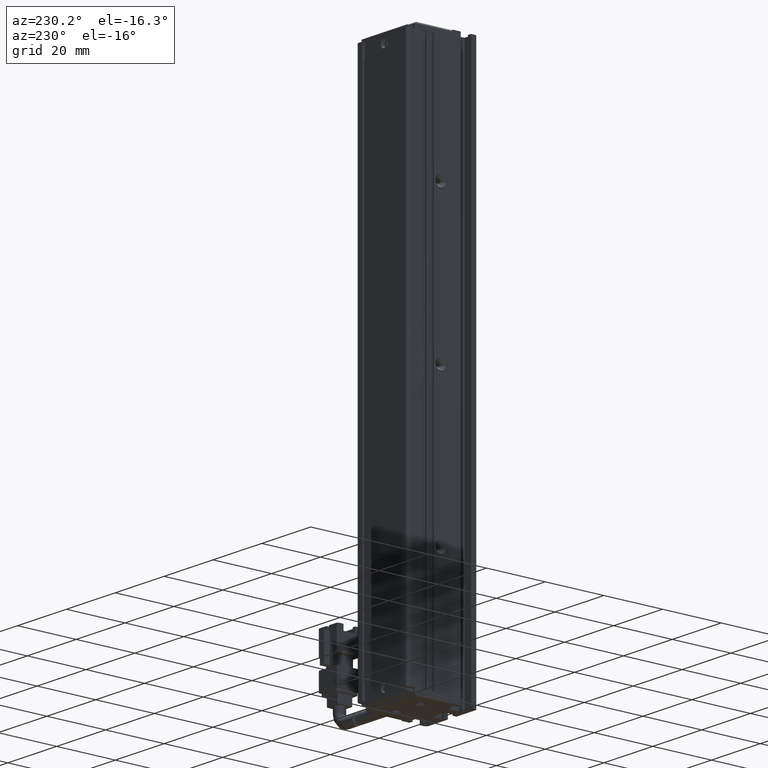
[diagram: clean part render]
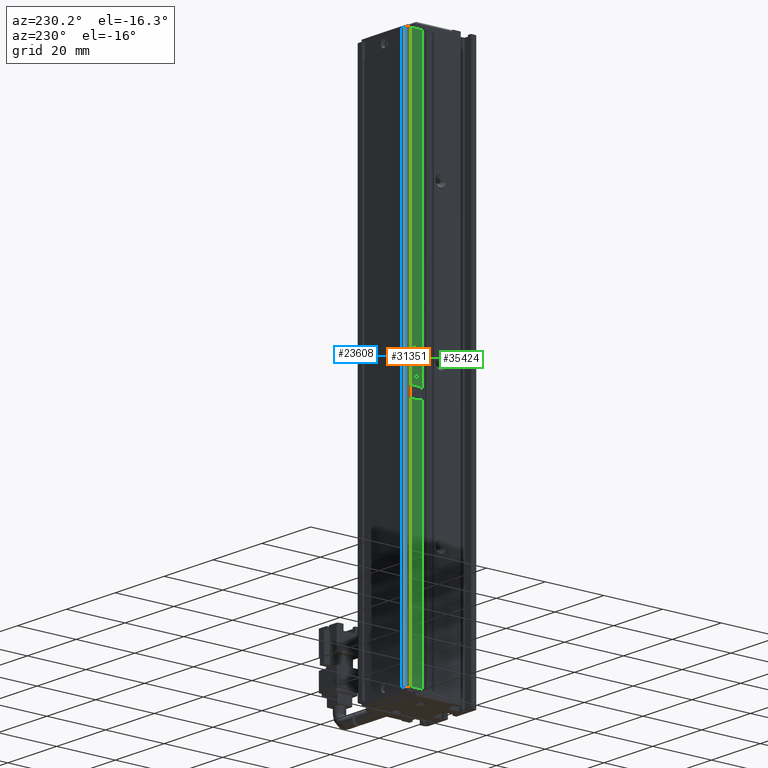
[diagram: same view with three faces highlighted in distinct colors, each labeled with its STEP entity id]
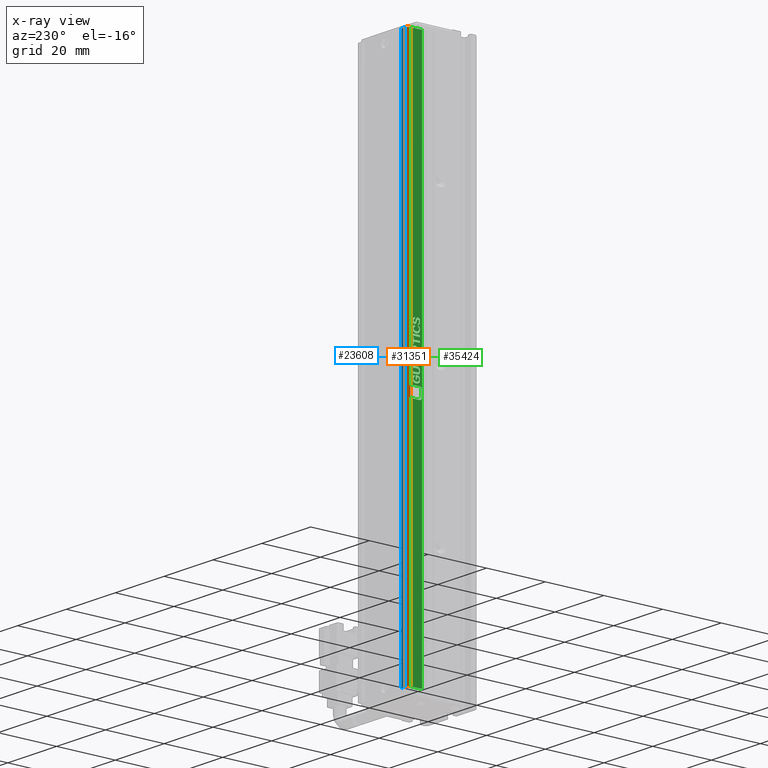
[diagram: x-ray of the same camera — body ghosted, the three highlighted faces saturated]
A machine part, auxiliary view with three faces highlighted in distinct colors.
The next image is the same camera in x-ray (body ghosted, the three faces saturated) — at least one of them is partly hidden behind the body in this view.
Their STEP definitions:

[orange] entity #31351 — the highlighted cylindrical surface (edge-blend (fillet) strip) has radius 1 mm, axis along (-0, -0, -1).
#727 = EDGE_LOOP ( 'NONE', ( #43307, #11248, #11197, #20317 ) ) ;
#1102 = LINE ( 'NONE', #10260, #7520 ) ;
#2620 = CARTESIAN_POINT ( 'NONE',  ( 31.42537974683542100, 33.99073232304837000, -205.0000000000000300 ) ) ;
#2968 = VERTEX_POINT ( 'NONE', #30794 ) ;
#3123 = EDGE_CURVE ( 'NONE', #2968, #19463, #19219, .T. ) ;
#3775 = CARTESIAN_POINT ( 'NONE',  ( 31.42537974683542100, 33.99073232304837000, -25.00000000000000700 ) ) ;
#3935 = DIRECTION ( 'NONE',  ( -0.0000000000000000000, -0.0000000000000000000, -1.000000000000000000 ) ) ;
#7520 = VECTOR ( 'NONE', #44297, 1000.000000000000000 ) ;
#9264 = CARTESIAN_POINT ( 'NONE',  ( 30.42537974683542500, 33.99073232304837000, -23.00000000000000700 ) ) ;
#10260 = CARTESIAN_POINT ( 'NONE',  ( 31.42537974683542100, 34.99073232304837000, -23.00000000000000700 ) ) ;
#11197 = ORIENTED_EDGE ( 'NONE', *, *, #28611, .T. ) ;
#11248 = ORIENTED_EDGE ( 'NONE', *, *, #25199, .F. ) ;
#17333 = DIRECTION ( 'NONE',  ( 0.0000000000000000000, 0.0000000000000000000, 1.000000000000000000 ) ) ;
#17574 = CIRCLE ( 'NONE', #27334, 1.000000000000000900 ) ;
#19219 = CIRCLE ( 'NONE', #32627, 1.000000000000000900 ) ;
#19463 = VERTEX_POINT ( 'NONE', #34511 ) ;
#20317 = ORIENTED_EDGE ( 'NONE', *, *, #41569, .T. ) ;
#21643 = CARTESIAN_POINT ( 'NONE',  ( 31.42537974683542100, 34.99073232304837700, -25.00000000000000700 ) ) ;
#25199 = EDGE_CURVE ( 'NONE', #32674, #19463, #34953, .T. ) ;
#26549 = DIRECTION ( 'NONE',  ( -1.000000000000000000, 0.0000000000000000000, 0.0000000000000000000 ) ) ;
#27334 = AXIS2_PLACEMENT_3D ( 'NONE', #3775, #3935, #26549 ) ;
#27814 = DIRECTION ( 'NONE',  ( -0.0000000000000000000, -0.0000000000000000000, -1.000000000000000000 ) ) ;
#28611 = EDGE_CURVE ( 'NONE', #32674, #39429, #17574, .T. ) ;
#28800 = DIRECTION ( 'NONE',  ( -1.000000000000000000, 0.0000000000000000000, 0.0000000000000000000 ) ) ;
#30794 = CARTESIAN_POINT ( 'NONE',  ( 31.42537974683542100, 34.99073232304837700, -205.0000000000000300 ) ) ;
#31140 = FACE_OUTER_BOUND ( 'NONE', #727, .T. ) ;
#31351 = ADVANCED_FACE ( 'NONE', ( #31140 ), #34645, .T. ) ;
#31455 = VECTOR ( 'NONE', #43174, 1000.000000000000000 ) ;
#32627 = AXIS2_PLACEMENT_3D ( 'NONE', #2620, #17333, #28800 ) ;
#32674 = VERTEX_POINT ( 'NONE', #33001 ) ;
#33001 = CARTESIAN_POINT ( 'NONE',  ( 30.42537974683542500, 33.99073232304837000, -25.00000000000000700 ) ) ;
#34511 = CARTESIAN_POINT ( 'NONE',  ( 30.42537974683542500, 33.99073232304837000, -205.0000000000000300 ) ) ;
#34645 = CYLINDRICAL_SURFACE ( 'NONE', #34700, 1.000000000000000900 ) ;
#34700 = AXIS2_PLACEMENT_3D ( 'NONE', #43184, #27814, #46925 ) ;
#34953 = LINE ( 'NONE', #9264, #31455 ) ;
#39429 = VERTEX_POINT ( 'NONE', #21643 ) ;
#41569 = EDGE_CURVE ( 'NONE', #39429, #2968, #1102, .T. ) ;
#43174 = DIRECTION ( 'NONE',  ( -0.0000000000000000000, -0.0000000000000000000, -1.000000000000000000 ) ) ;
#43184 = CARTESIAN_POINT ( 'NONE',  ( 31.42537974683542100, 33.99073232304837000, -23.00000000000000700 ) ) ;
#43307 = ORIENTED_EDGE ( 'NONE', *, *, #3123, .T. ) ;
#44297 = DIRECTION ( 'NONE',  ( -0.0000000000000000000, -0.0000000000000000000, -1.000000000000000000 ) ) ;
#46925 = DIRECTION ( 'NONE',  ( -1.000000000000000000, 0.0000000000000000000, 0.0000000000000000000 ) ) ;

[blue] entity #23608 — the highlighted planar face has unit normal (0, 1, -0).
#656 = AXIS2_PLACEMENT_3D ( 'NONE', #23310, #12136, #12305 ) ;
#1102 = LINE ( 'NONE', #10260, #7520 ) ;
#2375 = ORIENTED_EDGE ( 'NONE', *, *, #36226, .T. ) ;
#2757 = CARTESIAN_POINT ( 'NONE',  ( 40.92537974683548900, 34.99073232304835600, -25.00000000000000700 ) ) ;
#2968 = VERTEX_POINT ( 'NONE', #30794 ) ;
#7520 = VECTOR ( 'NONE', #44297, 1000.000000000000000 ) ;
#7672 = CARTESIAN_POINT ( 'NONE',  ( 32.92537974683542500, 34.99073232304837700, -23.00000000000000700 ) ) ;
#10260 = CARTESIAN_POINT ( 'NONE',  ( 31.42537974683542100, 34.99073232304837000, -23.00000000000000700 ) ) ;
#10369 = CARTESIAN_POINT ( 'NONE',  ( 40.92537974683548900, 34.99073232304835600, -205.0000000000000300 ) ) ;
#10795 = DIRECTION ( 'NONE',  ( -0.0000000000000000000, -0.0000000000000000000, -1.000000000000000000 ) ) ;
#10804 = ORIENTED_EDGE ( 'NONE', *, *, #41569, .F. ) ;
#12136 = DIRECTION ( 'NONE',  ( 2.312964634635740700E-015, 1.000000000000000000, -0.0000000000000000000 ) ) ;
#12305 = DIRECTION ( 'NONE',  ( -1.000000000000000000, 2.312964634635740700E-015, 0.0000000000000000000 ) ) ;
#14045 = CARTESIAN_POINT ( 'NONE',  ( 32.92537974683542500, 34.99073232304837700, -205.0000000000000300 ) ) ;
#14388 = EDGE_CURVE ( 'NONE', #31006, #48107, #21385, .T. ) ;
#16236 = PLANE ( 'NONE',  #656 ) ;
#19816 = EDGE_CURVE ( 'NONE', #39429, #31006, #47589, .T. ) ;
#21385 = LINE ( 'NONE', #7672, #28358 ) ;
#21643 = CARTESIAN_POINT ( 'NONE',  ( 31.42537974683542100, 34.99073232304837700, -25.00000000000000700 ) ) ;
#23310 = CARTESIAN_POINT ( 'NONE',  ( 40.92537974683548900, 34.99073232304835600, -23.00000000000000700 ) ) ;
#23608 = ADVANCED_FACE ( 'NONE', ( #43971 ), #16236, .T. ) ;
#24185 = LINE ( 'NONE', #10369, #27090 ) ;
#26535 = CARTESIAN_POINT ( 'NONE',  ( 32.92537974683542500, 34.99073232304837700, -25.00000000000000700 ) ) ;
#27090 = VECTOR ( 'NONE', #48126, 1000.000000000000000 ) ;
#28358 = VECTOR ( 'NONE', #10795, 1000.000000000000000 ) ;
#28869 = VECTOR ( 'NONE', #44330, 1000.000000000000000 ) ;
#30794 = CARTESIAN_POINT ( 'NONE',  ( 31.42537974683542100, 34.99073232304837700, -205.0000000000000300 ) ) ;
#31006 = VERTEX_POINT ( 'NONE', #26535 ) ;
#31143 = ORIENTED_EDGE ( 'NONE', *, *, #14388, .T. ) ;
#32464 = ORIENTED_EDGE ( 'NONE', *, *, #19816, .T. ) ;
#36226 = EDGE_CURVE ( 'NONE', #48107, #2968, #24185, .T. ) ;
#39429 = VERTEX_POINT ( 'NONE', #21643 ) ;
#41569 = EDGE_CURVE ( 'NONE', #39429, #2968, #1102, .T. ) ;
#42394 = EDGE_LOOP ( 'NONE', ( #2375, #10804, #32464, #31143 ) ) ;
#43971 = FACE_OUTER_BOUND ( 'NONE', #42394, .T. ) ;
#44297 = DIRECTION ( 'NONE',  ( -0.0000000000000000000, -0.0000000000000000000, -1.000000000000000000 ) ) ;
#44330 = DIRECTION ( 'NONE',  ( 1.000000000000000000, -2.312964634635740700E-015, -0.0000000000000000000 ) ) ;
#47589 = LINE ( 'NONE', #2757, #28869 ) ;
#48107 = VERTEX_POINT ( 'NONE', #14045 ) ;
#48126 = DIRECTION ( 'NONE',  ( -1.000000000000000000, 2.312964634635740700E-015, 0.0000000000000000000 ) ) ;

[green] entity #35424 — the highlighted planar face has unit normal (-1, 0, 0).
#50 = CARTESIAN_POINT ( 'NONE',  ( 30.42537974683542500, 30.87311854299757400, -119.8525554353704900 ) ) ;
#184 = EDGE_CURVE ( 'NONE', #14135, #12693, #12038, .T. ) ;
#252 = CARTESIAN_POINT ( 'NONE',  ( 30.42537974683542500, 32.76065910546375200, -104.5140616549485900 ) ) ;
#253 = CARTESIAN_POINT ( 'NONE',  ( 30.42537974683542500, 31.81497900811384500, -117.2671038399135200 ) ) ;
#344 = ORIENTED_EDGE ( 'NONE', *, *, #11004, .F. ) ;
#408 = CARTESIAN_POINT ( 'NONE',  ( 30.42537974683542500, 30.39922428931452500, -122.5300127964471500 ) ) ;
#482 = CARTESIAN_POINT ( 'NONE',  ( 30.42537974683542500, 32.17544412439291800, -120.8902109248240500 ) ) ;
#557 = EDGE_LOOP ( 'NONE', ( #25354, #4419, #41566, #34391 ) ) ;
#559 = CARTESIAN_POINT ( 'NONE',  ( 30.42537974683542500, 33.23358365927662600, -119.3715521903732100 ) ) ;
#578 = CARTESIAN_POINT ( 'NONE',  ( 30.42537974683542500, 32.75285083072063900, -106.6654948620877100 ) ) ;
#649 = CARTESIAN_POINT ( 'NONE',  ( 30.42537974683542500, 31.89637435695103600, -105.5121011357491600 ) ) ;
#673 = VERTEX_POINT ( 'NONE', #17264 ) ;
#724 = EDGE_CURVE ( 'NONE', #28060, #33742, #30650, .T. ) ;
#771 = ORIENTED_EDGE ( 'NONE', *, *, #25949, .F. ) ;
#826 = LINE ( 'NONE', #20044, #12569 ) ;
#888 = DIRECTION ( 'NONE',  ( -0.0000000000000000000, 1.000000000000000000, -0.0000000000000000000 ) ) ;
#915 = CARTESIAN_POINT ( 'NONE',  ( 30.42537974683542500, 32.58242086857893600, -105.2371552190373200 ) ) ;
#969 = CARTESIAN_POINT ( 'NONE',  ( 30.42537974683542500, 32.91963017090452600, -120.5105462412114900 ) ) ;
#1010 = CARTESIAN_POINT ( 'NONE',  ( 30.42537974683542500, 33.23358365927662600, -111.9338155759872000 ) ) ;
#1144 = ORIENTED_EDGE ( 'NONE', *, *, #17878, .F. ) ;
#1210 = DIRECTION ( 'NONE',  ( -0.0000000000000000000, 1.000000000000000000, -0.0000000000000000000 ) ) ;
#1239 = CARTESIAN_POINT ( 'NONE',  ( 30.42537974683542500, 30.68707203136964500, -114.9999999999999900 ) ) ;
#1245 = CARTESIAN_POINT ( 'NONE',  ( 30.42537974683542500, 33.23358365927662600, -109.3484315846403700 ) ) ;
#1305 = VERTEX_POINT ( 'NONE', #48263 ) ;
#1349 = CARTESIAN_POINT ( 'NONE',  ( 30.42537974683542500, 33.23358365927662600, -117.7877906976743700 ) ) ;
#1361 = CARTESIAN_POINT ( 'NONE',  ( 30.42537974683542500, 31.78009528718359900, -104.8466062736614900 ) ) ;
#1425 = VECTOR ( 'NONE', #35009, 1000.000000000000000 ) ;
#1548 = ORIENTED_EDGE ( 'NONE', *, *, #30462, .F. ) ;
#1609 = B_SPLINE_CURVE_WITH_KNOTS ( 'NONE', 3,
 ( #38985, #13151, #20210, #16756 ),
 .UNSPECIFIED., .F., .F.,
 ( 4, 4 ),
 ( 9.000000000000000000, 10.00000000000000000 ),
 .UNSPECIFIED. ) ;
#1641 = ORIENTED_EDGE ( 'NONE', *, *, #29147, .F. ) ;
#1663 = EDGE_LOOP ( 'NONE', ( #6039, #25455, #13439, #13896, #2384, #46334, #37315, #19321 ) ) ;
#1664 = CARTESIAN_POINT ( 'NONE',  ( 30.42537974683542500, 33.23358365927662600, -108.5348161168199300 ) ) ;
#1744 = CARTESIAN_POINT ( 'NONE',  ( 30.42537974683542500, 33.26846738020684300, -120.2285018929152300 ) ) ;
#1908 = CARTESIAN_POINT ( 'NONE',  ( 30.42537974683542500, 31.82660691509057200, -120.8902109248240500 ) ) ;
#1936 = B_SPLINE_CURVE_WITH_KNOTS ( 'NONE', 3,
 ( #41323, #11366, #7756, #3841 ),
 .UNSPECIFIED., .F., .F.,
 ( 4, 4 ),
 ( 11.00000000000000000, 12.00000000000000000 ),
 .UNSPECIFIED. ) ;
#1937 = B_SPLINE_CURVE_WITH_KNOTS ( 'NONE', 3,
 ( #48454, #26114, #50, #41304 ),
 .UNSPECIFIED., .F., .F.,
 ( 4, 4 ),
 ( 10.00000000000000000, 11.00000000000000000 ),
 .UNSPECIFIED. ) ;
#1995 = CARTESIAN_POINT ( 'NONE',  ( 30.42537974683542500, 31.96614179881149900, -113.8393050297457600 ) ) ;
#2161 = CARTESIAN_POINT ( 'NONE',  ( 30.42537974683542500, 30.68707203136964500, -107.0920767982693200 ) ) ;
#2226 = EDGE_CURVE ( 'NONE', #17834, #13078, #26912, .T. ) ;
#2285 = EDGE_CURVE ( 'NONE', #35113, #22017, #23524, .T. ) ;
#2299 = CARTESIAN_POINT ( 'NONE',  ( 30.42537974683542500, 31.60567668253242600, -113.0040562466198000 ) ) ;
#2384 = ORIENTED_EDGE ( 'NONE', *, *, #37741, .F. ) ;
#2506 = VERTEX_POINT ( 'NONE', #43613 ) ;
#2808 = ORIENTED_EDGE ( 'NONE', *, *, #22411, .F. ) ;
#2809 = CARTESIAN_POINT ( 'NONE',  ( 30.42537974683542500, 34.99073232304837700, -205.0000000000000300 ) ) ;
#2962 = ORIENTED_EDGE ( 'NONE', *, *, #17226, .F. ) ;
#3181 = VERTEX_POINT ( 'NONE', #9970 ) ;
#3355 = ORIENTED_EDGE ( 'NONE', *, *, #12343, .F. ) ;
#3391 = ORIENTED_EDGE ( 'NONE', *, *, #23096, .T. ) ;
#3618 = ORIENTED_EDGE ( 'NONE', *, *, #6497, .F. ) ;
#3841 = CARTESIAN_POINT ( 'NONE',  ( 30.42537974683542500, 30.68707203136964500, -120.7383044889129300 ) ) ;
#3951 = CARTESIAN_POINT ( 'NONE',  ( 30.42537974683542500, 31.96614179881149900, -116.1606949702541100 ) ) ;
#4067 = B_SPLINE_CURVE_WITH_KNOTS ( 'NONE', 3,
 ( #15641, #41832, #408, #45266 ),
 .UNSPECIFIED., .F., .F.,
 ( 4, 4 ),
 ( 5.000000000000000000, 6.000000000000000000 ),
 .UNSPECIFIED. ) ;
#4147 = VERTEX_POINT ( 'NONE', #22343 ) ;
#4176 = VERTEX_POINT ( 'NONE', #8675 ) ;
#4277 = CARTESIAN_POINT ( 'NONE',  ( 30.42537974683542500, 30.68707203136964500, -114.9999999999999900 ) ) ;
#4297 = VERTEX_POINT ( 'NONE', #1349 ) ;
#4325 = ORIENTED_EDGE ( 'NONE', *, *, #4435, .F. ) ;
#4349 = DIRECTION ( 'NONE',  ( -0.0000000000000000000, -1.000000000000000000, -0.0000000000000000000 ) ) ;
#4375 = VERTEX_POINT ( 'NONE', #44107 ) ;
#4419 = ORIENTED_EDGE ( 'NONE', *, *, #26447, .F. ) ;
#4435 = EDGE_CURVE ( 'NONE', #22249, #7713, #29680, .T. ) ;
#4636 = CARTESIAN_POINT ( 'NONE',  ( 30.42537974683542500, 32.88474644997428000, -110.1185776095187700 ) ) ;
#4642 = CARTESIAN_POINT ( 'NONE',  ( 30.42537974683542500, 33.21679539955394500, -122.5300127964471500 ) ) ;
#4668 = DIRECTION ( 'NONE',  ( -0.0000000000000000000, 1.000000000000000000, -0.0000000000000000000 ) ) ;
#4722 = EDGE_CURVE ( 'NONE', #17020, #28701, #22184, .T. ) ;
#4800 = VERTEX_POINT ( 'NONE', #42906 ) ;
#4896 = ORIENTED_EDGE ( 'NONE', *, *, #6052, .F. ) ;
#4904 = CARTESIAN_POINT ( 'NONE',  ( 30.42537974683542500, 33.23358365927662600, -112.5050703082747200 ) ) ;
#4960 = EDGE_CURVE ( 'NONE', #21791, #40255, #6579, .T. ) ;
#5038 = VERTEX_POINT ( 'NONE', #45161 ) ;
#5129 = CARTESIAN_POINT ( 'NONE',  ( 30.42537974683542500, 32.88474644997428000, -111.4094104921578000 ) ) ;
#5222 = CARTESIAN_POINT ( 'NONE',  ( 30.42537974683542500, 31.82660691509057200, -120.8902109248240500 ) ) ;
#5293 = ORIENTED_EDGE ( 'NONE', *, *, #46140, .F. ) ;
#5413 = EDGE_CURVE ( 'NONE', #34291, #32710, #42846, .T. ) ;
#5496 = CARTESIAN_POINT ( 'NONE',  ( 30.42537974683542500, 31.40800226392779500, -120.1959843158463300 ) ) ;
#5598 = ORIENTED_EDGE ( 'NONE', *, *, #32918, .F. ) ;
#5602 = VECTOR ( 'NONE', #11090, 1000.000000000000000 ) ;
#5629 = EDGE_CURVE ( 'NONE', #16101, #17020, #33463, .T. ) ;
#5675 = CARTESIAN_POINT ( 'NONE',  ( 30.42537974683542500, 31.19471129583693200, -106.3834505137911200 ) ) ;
#5748 = VERTEX_POINT ( 'NONE', #44920 ) ;
#6039 = ORIENTED_EDGE ( 'NONE', *, *, #22324, .F. ) ;
#6050 = CARTESIAN_POINT ( 'NONE',  ( 30.42537974683542500, 33.66555298415205800, -122.5300127964471500 ) ) ;
#6052 = EDGE_CURVE ( 'NONE', #17880, #2506, #33937, .T. ) ;
#6053 = VERTEX_POINT ( 'NONE', #10351 ) ;
#6083 = EDGE_CURVE ( 'NONE', #7618, #41646, #40970, .T. ) ;
#6256 = DIRECTION ( 'NONE',  ( -0.0000000000000000000, -1.000000000000000000, -0.0000000000000000000 ) ) ;
#6308 = EDGE_CURVE ( 'NONE', #38025, #43229, #44742, .T. ) ;
#6381 = CARTESIAN_POINT ( 'NONE',  ( 30.42537974683542500, 32.78773455165088500, -113.8900081124931100 ) ) ;
#6497 = EDGE_CURVE ( 'NONE', #14178, #4800, #27345, .T. ) ;
#6579 = LINE ( 'NONE', #21955, #8285 ) ;
#6762 = CARTESIAN_POINT ( 'NONE',  ( 30.42537974683542500, 33.23358365927662600, -109.0446863169279400 ) ) ;
#6789 = CARTESIAN_POINT ( 'NONE',  ( 30.42537974683542500, 30.73358365927662200, -108.5348161168199300 ) ) ;
#6836 = EDGE_CURVE ( 'NONE', #20037, #35864, #42385, .T. ) ;
#7352 = CARTESIAN_POINT ( 'NONE',  ( 30.42537974683542500, 33.26065910546372400, -105.4540968090860200 ) ) ;
#7469 = EDGE_CURVE ( 'NONE', #28084, #41691, #9111, .T. ) ;
#7575 = DIRECTION ( 'NONE',  ( -0.0000000000000000000, -0.0000000000000000000, 1.000000000000000000 ) ) ;
#7618 = VERTEX_POINT ( 'NONE', #20949 ) ;
#7652 = ORIENTED_EDGE ( 'NONE', *, *, #5413, .F. ) ;
#7668 = VERTEX_POINT ( 'NONE', #40225 ) ;
#7713 = VERTEX_POINT ( 'NONE', #40878 ) ;
#7755 = DIRECTION ( 'NONE',  ( -0.0000000000000000000, -0.0000000000000000000, 1.000000000000000000 ) ) ;
#7756 = CARTESIAN_POINT ( 'NONE',  ( 30.42537974683542500, 30.71813612006624800, -121.5049351000541100 ) ) ;
#7858 = CARTESIAN_POINT ( 'NONE',  ( 30.42537974683542500, 33.26846738020684300, -104.8900081124933800 ) ) ;
#7861 = CARTESIAN_POINT ( 'NONE',  ( 30.42537974683542500, 32.44288598485800900, -106.0832206598161200 ) ) ;
#7989 = ORIENTED_EDGE ( 'NONE', *, *, #31698, .F. ) ;
#8045 = CARTESIAN_POINT ( 'NONE',  ( 30.42537974683542500, 30.73358365927662200, -109.0446863169279400 ) ) ;
#8071 = ORIENTED_EDGE ( 'NONE', *, *, #39854, .F. ) ;
#8115 = VERTEX_POINT ( 'NONE', #17606 ) ;
#8156 = CARTESIAN_POINT ( 'NONE',  ( 30.42537974683542500, 32.99321724499863300, -104.0222417522984600 ) ) ;
#8215 = EDGE_CURVE ( 'NONE', #15439, #23736, #23048, .T. ) ;
#8236 = CARTESIAN_POINT ( 'NONE',  ( 30.42537974683542500, 31.66381621741615900, -117.7877906976743700 ) ) ;
#8248 = CARTESIAN_POINT ( 'NONE',  ( 30.42537974683542500, 31.58242086857893900, -106.1375067604110000 ) ) ;
#8285 = VECTOR ( 'NONE', #32582, 1000.000000000000000 ) ;
#8323 = CARTESIAN_POINT ( 'NONE',  ( 30.42537974683542500, 32.91963017090452600, -120.7708896700919200 ) ) ;
#8362 = EDGE_CURVE ( 'NONE', #33742, #45828, #22959, .T. ) ;
#8394 = CARTESIAN_POINT ( 'NONE',  ( 30.42537974683542500, 32.48939761276498900, -104.4344240129798600 ) ) ;
#8532 = CARTESIAN_POINT ( 'NONE',  ( 30.42537974683542500, 32.22195575229986300, -104.8249729583558000 ) ) ;
#8675 = CARTESIAN_POINT ( 'NONE',  ( 30.42537974683542500, 31.10567668253242600, -106.1375067604110000 ) ) ;
#8697 = VECTOR ( 'NONE', #24210, 1000.000000000000000 ) ;
#9012 = CARTESIAN_POINT ( 'NONE',  ( 30.42537974683542500, 31.72577538453350600, -104.5501622498645700 ) ) ;
#9054 = VECTOR ( 'NONE', #29345, 1000.000000000000000 ) ;
#9111 = B_SPLINE_CURVE_WITH_KNOTS ( 'NONE', 3,
 ( #41904, #45493, #649, #26851 ),
 .UNSPECIFIED., .F., .F.,
 ( 4, 4 ),
 ( 4.000000000000000000, 5.000000000000000000 ),
 .UNSPECIFIED. ) ;
#9140 = VERTEX_POINT ( 'NONE', #28774 ) ;
#9264 = CARTESIAN_POINT ( 'NONE',  ( 30.42537974683542500, 33.99073232304837000, -23.00000000000000700 ) ) ;
#9304 = CARTESIAN_POINT ( 'NONE',  ( 30.42537974683542500, 31.82660691509057200, -103.8703353163873400 ) ) ;
#9311 = CARTESIAN_POINT ( 'NONE',  ( 30.42537974683542500, 31.43125807788128200, -103.8703353163873400 ) ) ;
#9395 = CARTESIAN_POINT ( 'NONE',  ( 30.42537974683542500, 30.82660691509057200, -106.3473499188751200 ) ) ;
#9449 = B_SPLINE_CURVE_WITH_KNOTS ( 'NONE', 3,
 ( #8236, #12037, #42312, #38201 ),
 .UNSPECIFIED., .F., .F.,
 ( 4, 4 ),
 ( 4.000000000000000000, 5.000000000000000000 ),
 .UNSPECIFIED. ) ;
#9459 = ORIENTED_EDGE ( 'NONE', *, *, #33473, .F. ) ;
#9640 = CARTESIAN_POINT ( 'NONE',  ( 30.42537974683542500, 31.98939761276498600, -121.9315846403461400 ) ) ;
#9703 = VECTOR ( 'NONE', #888, 1000.000000000000000 ) ;
#9715 = LINE ( 'NONE', #27759, #17338 ) ;
#9727 = CARTESIAN_POINT ( 'NONE',  ( 30.42537974683542500, 32.44288598485800900, -106.5930908599242500 ) ) ;
#9834 = VECTOR ( 'NONE', #31253, 1000.000000000000000 ) ;
#9970 = CARTESIAN_POINT ( 'NONE',  ( 30.42537974683542500, 32.88474644997428000, -110.1185776095187700 ) ) ;
#9974 = CARTESIAN_POINT ( 'NONE',  ( 30.42537974683542500, 33.89655033925246400, -123.2097405380182000 ) ) ;
#10017 = CARTESIAN_POINT ( 'NONE',  ( 30.42537974683542500, 31.15600794267304300, -108.1949702541913900 ) ) ;
#10088 = ORIENTED_EDGE ( 'NONE', *, *, #40733, .F. ) ;
#10207 = CARTESIAN_POINT ( 'NONE',  ( 30.42537974683542500, 31.95451389183474300, -107.6995673336938500 ) ) ;
#10341 = EDGE_CURVE ( 'NONE', #19280, #19192, #11619, .T. ) ;
#10351 = CARTESIAN_POINT ( 'NONE',  ( 30.42537974683542500, 31.01265342671847600, -104.9008923742562600 ) ) ;
#10547 = CARTESIAN_POINT ( 'NONE',  ( 30.42537974683542500, 32.90800226392777000, -107.0812601406166900 ) ) ;
#10594 = ORIENTED_EDGE ( 'NONE', *, *, #32446, .F. ) ;
#10703 = ORIENTED_EDGE ( 'NONE', *, *, #184, .F. ) ;
#10889 = CARTESIAN_POINT ( 'NONE',  ( 30.42537974683542500, 32.90800226392777000, -105.1251352082206400 ) ) ;
#11004 = EDGE_CURVE ( 'NONE', #28638, #14178, #27020, .T. ) ;
#11050 = CARTESIAN_POINT ( 'NONE',  ( 30.42537974683542500, 32.79936245862761300, -105.2444564629530000 ) ) ;
#11090 = DIRECTION ( 'NONE',  ( -0.0000000000000000000, -1.000000000000000000, -0.0000000000000000000 ) ) ;
#11092 = CARTESIAN_POINT ( 'NONE',  ( 30.42537974683542500, 33.26846738020684300, -107.1137777176852700 ) ) ;
#11100 = EDGE_CURVE ( 'NONE', #45828, #45730, #42708, .T. ) ;
#11110 = ORIENTED_EDGE ( 'NONE', *, *, #2226, .F. ) ;
#11127 = CARTESIAN_POINT ( 'NONE',  ( 30.42537974683542500, 33.26846738020684300, -104.8900081124933800 ) ) ;
#11235 = CARTESIAN_POINT ( 'NONE',  ( 30.42537974683542500, 31.14056040346267200, -104.4092076798267500 ) ) ;
#11290 = EDGE_CURVE ( 'NONE', #37081, #18618, #20134, .T. ) ;
#11366 = CARTESIAN_POINT ( 'NONE',  ( 30.42537974683542500, 31.15218831043939900, -121.9027852893456200 ) ) ;
#11411 = CARTESIAN_POINT ( 'NONE',  ( 30.42537974683542500, 31.97776970578825800, -108.2310708491077100 ) ) ;
#11415 = CARTESIAN_POINT ( 'NONE',  ( 30.42537974683542500, 31.23740329151026500, -118.8508653326121900 ) ) ;
#11476 = CARTESIAN_POINT ( 'NONE',  ( 30.42537974683542500, 30.73358365927662200, -115.7376284478096000 ) ) ;
#11487 = LINE ( 'NONE', #14858, #40175 ) ;
#11619 = B_SPLINE_CURVE_WITH_KNOTS ( 'NONE', 3,
 ( #40139, #32460, #17237, #35713 ),
 .UNSPECIFIED., .F., .F.,
 ( 4, 4 ),
 ( 2.000000000000000000, 3.000000000000000000 ),
 .UNSPECIFIED. ) ;
#11747 = CARTESIAN_POINT ( 'NONE',  ( 30.42537974683541400, 7.083797468354442000, -23.00000000000000700 ) ) ;
#11881 = VERTEX_POINT ( 'NONE', #5222 ) ;
#12037 = CARTESIAN_POINT ( 'NONE',  ( 30.42537974683542500, 31.22195575229986300, -117.7733910221741000 ) ) ;
#12038 = LINE ( 'NONE', #22251, #5602 ) ;
#12124 = DIRECTION ( 'NONE',  ( -0.0000000000000000000, -0.0000000000000000000, 1.000000000000000000 ) ) ;
#12178 = CARTESIAN_POINT ( 'NONE',  ( 30.42537974683542500, 30.73358365927662200, -110.1185776095187700 ) ) ;
#12213 = LINE ( 'NONE', #37717, #24558 ) ;
#12337 = ORIENTED_EDGE ( 'NONE', *, *, #24812, .F. ) ;
#12343 = EDGE_CURVE ( 'NONE', #41646, #4176, #26368, .T. ) ;
#12344 = CARTESIAN_POINT ( 'NONE',  ( 30.42537974683542500, 30.84788674056666100, -126.2584380358828200 ) ) ;
#12385 = VECTOR ( 'NONE', #22889, 1000.000000000000000 ) ;
#12566 = CARTESIAN_POINT ( 'NONE',  ( 30.42537974683542500, 32.53590924067196300, -119.7186992969173100 ) ) ;
#12569 = VECTOR ( 'NONE', #42611, 1000.000000000000000 ) ;
#12583 = CARTESIAN_POINT ( 'NONE',  ( 30.42537974683542500, 31.81497900811384500, -117.2671038399135200 ) ) ;
#12690 = CARTESIAN_POINT ( 'NONE',  ( 30.42537974683542500, 31.15982757490671400, -113.8756084369929100 ) ) ;
#12693 = VERTEX_POINT ( 'NONE', #8045 ) ;
#12742 = CARTESIAN_POINT ( 'NONE',  ( 30.42537974683542500, 32.53590924067196300, -120.2610194699837900 ) ) ;
#12776 = CARTESIAN_POINT ( 'NONE',  ( 30.42537974683542500, 30.73358365927662200, -110.6392644672795000 ) ) ;
#12807 = CARTESIAN_POINT ( 'NONE',  ( 30.42537974683542500, 32.90800226392777000, -104.8791914548403700 ) ) ;
#12851 = CARTESIAN_POINT ( 'NONE',  ( 30.42537974683542500, 33.23358365927662600, -111.4094104921578000 ) ) ;
#12855 = VERTEX_POINT ( 'NONE', #12807 ) ;
#12913 = B_SPLINE_CURVE_WITH_KNOTS ( 'NONE', 3,
 ( #32091, #6050, #28635, #9974 ),
 .UNSPECIFIED., .F., .F.,
 ( 4, 4 ),
 ( 3.000000000000000000, 4.000000000000000000 ),
 .UNSPECIFIED. ) ;
#12943 = CARTESIAN_POINT ( 'NONE',  ( 30.42537974683542500, 32.22195575229986300, -104.8249729583558000 ) ) ;
#13001 = ORIENTED_EDGE ( 'NONE', *, *, #22073, .F. ) ;
#13024 = VECTOR ( 'NONE', #7755, 1000.000000000000000 ) ;
#13040 = VERTEX_POINT ( 'NONE', #35852 ) ;
#13078 = VERTEX_POINT ( 'NONE', #18358 ) ;
#13151 = CARTESIAN_POINT ( 'NONE',  ( 30.42537974683542500, 31.03192059816251800, -119.3932531097891600 ) ) ;
#13171 = VECTOR ( 'NONE', #22666, 1000.000000000000000 ) ;
#13283 = EDGE_CURVE ( 'NONE', #40255, #30460, #27425, .T. ) ;
#13439 = ORIENTED_EDGE ( 'NONE', *, *, #40268, .F. ) ;
#13476 = CARTESIAN_POINT ( 'NONE',  ( 30.42537974683542500, 31.06298468685912100, -121.1613710113577200 ) ) ;
#13530 = VECTOR ( 'NONE', #34747, 1000.000000000000000 ) ;
#13613 = CARTESIAN_POINT ( 'NONE',  ( 30.42537974683542500, 31.60567668253242600, -113.0040562466198000 ) ) ;
#13677 = EDGE_CURVE ( 'NONE', #38360, #23699, #32633, .T. ) ;
#13729 = FACE_BOUND ( 'NONE', #25327, .T. ) ;
#13752 = EDGE_CURVE ( 'NONE', #24567, #38018, #34909, .T. ) ;
#13796 = LINE ( 'NONE', #34529, #34846 ) ;
#13896 = ORIENTED_EDGE ( 'NONE', *, *, #2285, .F. ) ;
#14000 = VERTEX_POINT ( 'NONE', #43127 ) ;
#14025 = ORIENTED_EDGE ( 'NONE', *, *, #6083, .F. ) ;
#14135 = VERTEX_POINT ( 'NONE', #6762 ) ;
#14178 = VERTEX_POINT ( 'NONE', #34499 ) ;
#14346 = CARTESIAN_POINT ( 'NONE',  ( 30.42537974683542500, 31.60567668253242600, -112.5050703082747200 ) ) ;
#14460 = CARTESIAN_POINT ( 'NONE',  ( 30.42537974683542500, 31.02029269118575900, -105.2479718766902200 ) ) ;
#14551 = EDGE_LOOP ( 'NONE', ( #43799, #44649, #10703, #46663 ) ) ;
#14762 = EDGE_CURVE ( 'NONE', #4176, #20037, #18327, .T. ) ;
#14858 = CARTESIAN_POINT ( 'NONE',  ( 30.42537974683542500, 31.82660691509057200, -120.1959843158463300 ) ) ;
#14920 = FACE_BOUND ( 'NONE', #20218, .T. ) ;
#15106 = CARTESIAN_POINT ( 'NONE',  ( 30.42537974683542500, 32.53590924067196300, -120.2610194699837900 ) ) ;
#15246 = CARTESIAN_POINT ( 'NONE',  ( 30.42537974683542500, 30.68707203136964500, -118.3301784748512200 ) ) ;
#15327 = CARTESIAN_POINT ( 'NONE',  ( 30.42537974683542500, 32.22195575229986300, -104.8249729583558000 ) ) ;
#15367 = VERTEX_POINT ( 'NONE', #29351 ) ;
#15439 = VERTEX_POINT ( 'NONE', #41452 ) ;
#15450 = CARTESIAN_POINT ( 'NONE',  ( 30.42537974683542500, 30.73358365927662200, -113.0040562466198000 ) ) ;
#15451 = ORIENTED_EDGE ( 'NONE', *, *, #31145, .F. ) ;
#15512 = CARTESIAN_POINT ( 'NONE',  ( 30.42537974683542100, 29.99073232304837000, -23.00000000000000700 ) ) ;
#15537 = CARTESIAN_POINT ( 'NONE',  ( 30.42537974683542500, 31.02428133369520300, -118.3193618171984300 ) ) ;
#15641 = CARTESIAN_POINT ( 'NONE',  ( 30.42537974683542500, 30.16812500562888400, -123.2097405380182000 ) ) ;
#15738 = CARTESIAN_POINT ( 'NONE',  ( 30.42537974683542500, 33.25285083072063900, -104.3405219037316700 ) ) ;
#15784 = CARTESIAN_POINT ( 'NONE',  ( 30.42537974683542500, 31.97776970578825800, -121.4108977825854100 ) ) ;
#15793 = DIRECTION ( 'NONE',  ( -0.0000000000000000000, -0.0000000000000000000, -1.000000000000000000 ) ) ;
#15824 = CARTESIAN_POINT ( 'NONE',  ( 30.42537974683542500, 33.23358365927662600, -113.5138588426176700 ) ) ;
#15830 = VERTEX_POINT ( 'NONE', #13613 ) ;
#15909 = ORIENTED_EDGE ( 'NONE', *, *, #25654, .F. ) ;
#15984 = ORIENTED_EDGE ( 'NONE', *, *, #13752, .F. ) ;
#16101 = VERTEX_POINT ( 'NONE', #42523 ) ;
#16371 = CARTESIAN_POINT ( 'NONE',  ( 30.42537974683542500, 30.73358365927662200, -108.5348161168199300 ) ) ;
#16380 = LINE ( 'NONE', #48086, #42176 ) ;
#16383 = EDGE_CURVE ( 'NONE', #13078, #12855, #34504, .T. ) ;
#16486 = CARTESIAN_POINT ( 'NONE',  ( 30.42537974683542500, 33.23358365927662600, -119.3715521903732100 ) ) ;
#16490 = ORIENTED_EDGE ( 'NONE', *, *, #16637, .F. ) ;
#16505 = VERTEX_POINT ( 'NONE', #1245 ) ;
#16546 = CARTESIAN_POINT ( 'NONE',  ( 30.42537974683542500, 33.26846738020684300, -120.7708896700919200 ) ) ;
#16637 = EDGE_CURVE ( 'NONE', #41142, #4297, #46415, .T. ) ;
#16655 = LINE ( 'NONE', #46367, #31309 ) ;
#16674 = B_SPLINE_CURVE_WITH_KNOTS ( 'NONE', 3,
 ( #18294, #19409, #252, #8394 ),
 .UNSPECIFIED., .F., .F.,
 ( 4, 4 ),
 ( 8.000000000000000000, 9.000000000000000000 ),
 .UNSPECIFIED. ) ;
#16756 = CARTESIAN_POINT ( 'NONE',  ( 30.42537974683542500, 30.68707203136964500, -118.3301784748512200 ) ) ;
#16987 = B_SPLINE_CURVE_WITH_KNOTS ( 'NONE', 3,
 ( #30856, #41839, #578, #41678 ),
 .UNSPECIFIED., .F., .F.,
 ( 4, 4 ),
 ( 1.000000000000000000, 2.000000000000000000 ),
 .UNSPECIFIED. ) ;
#17020 = VERTEX_POINT ( 'NONE', #36605 ) ;
#17049 = ORIENTED_EDGE ( 'NONE', *, *, #41823, .F. ) ;
#17090 = VECTOR ( 'NONE', #1210, 1000.000000000000000 ) ;
#17169 = EDGE_CURVE ( 'NONE', #18173, #6053, #19809, .T. ) ;
#17226 = EDGE_CURVE ( 'NONE', #32710, #17880, #45661, .T. ) ;
#17232 = CARTESIAN_POINT ( 'NONE',  ( 30.42537974683542500, 31.05517641211597600, -107.4429421308815200 ) ) ;
#17237 = CARTESIAN_POINT ( 'NONE',  ( 30.42537974683542500, 32.89238571444156600, -107.4863439697134000 ) ) ;
#17264 = CARTESIAN_POINT ( 'NONE',  ( 30.42537974683542500, 30.68707203136964500, -120.7383044889129300 ) ) ;
#17338 = VECTOR ( 'NONE', #42954, 1000.000000000000000 ) ;
#17606 = CARTESIAN_POINT ( 'NONE',  ( 30.42537974683542500, 33.26846738020684300, -107.1137777176852700 ) ) ;
#17834 = VERTEX_POINT ( 'NONE', #8532 ) ;
#17878 = EDGE_CURVE ( 'NONE', #15830, #16101, #32700, .T. ) ;
#17880 = VERTEX_POINT ( 'NONE', #559 ) ;
#17901 = CARTESIAN_POINT ( 'NONE',  ( 30.42537974683542500, 30.73358365927662200, -110.1185776095187700 ) ) ;
#18173 = VERTEX_POINT ( 'NONE', #29329 ) ;
#18190 = CARTESIAN_POINT ( 'NONE',  ( 30.42537974683542100, 29.99073232304837000, -24.99999999999999300 ) ) ;
#18266 = VECTOR ( 'NONE', #29275, 1000.000000000000000 ) ;
#18294 = CARTESIAN_POINT ( 'NONE',  ( 30.42537974683542500, 32.90800226392777000, -104.8791914548403700 ) ) ;
#18327 = LINE ( 'NONE', #33166, #42918 ) ;
#18358 = CARTESIAN_POINT ( 'NONE',  ( 30.42537974683542500, 32.58242086857893600, -105.2371552190373200 ) ) ;
#18412 = CARTESIAN_POINT ( 'NONE',  ( 30.42537974683542500, 32.58242086857893600, -105.7686587344510700 ) ) ;
#18474 = CARTESIAN_POINT ( 'NONE',  ( 30.42537974683542500, 33.22195575229986300, -107.8226068144942900 ) ) ;
#18521 = VECTOR ( 'NONE', #26873, 1000.000000000000000 ) ;
#18547 = CARTESIAN_POINT ( 'NONE',  ( 30.42537974683542500, 33.23358365927662600, -111.4094104921578000 ) ) ;
#18570 = CARTESIAN_POINT ( 'NONE',  ( 30.42537974683542500, 32.17544412439291800, -119.7078150351542100 ) ) ;
#18571 = ORIENTED_EDGE ( 'NONE', *, *, #30116, .F. ) ;
#18618 = VERTEX_POINT ( 'NONE', #28616 ) ;
#18839 = CARTESIAN_POINT ( 'NONE',  ( 30.42537974683542500, 31.15218831043939900, -105.8229448350457300 ) ) ;
#18858 = ORIENTED_EDGE ( 'NONE', *, *, #32885, .F. ) ;
#18913 = CARTESIAN_POINT ( 'NONE',  ( 30.42537974683542500, 32.88075780746483200, -121.1759734991886900 ) ) ;
#19094 = LINE ( 'NONE', #4642, #9703 ) ;
#19113 = VERTEX_POINT ( 'NONE', #9727 ) ;
#19138 = CARTESIAN_POINT ( 'NONE',  ( 30.42537974683542500, 31.96614179881149900, -116.1606949702541100 ) ) ;
#19192 = VERTEX_POINT ( 'NONE', #10547 ) ;
#19241 = ORIENTED_EDGE ( 'NONE', *, *, #40231, .F. ) ;
#19265 = CARTESIAN_POINT ( 'NONE',  ( 30.42537974683542500, 30.73358365927662200, -113.5138588426176700 ) ) ;
#19280 = VERTEX_POINT ( 'NONE', #45988 ) ;
#19321 = ORIENTED_EDGE ( 'NONE', *, *, #22035, .F. ) ;
#19341 = CARTESIAN_POINT ( 'NONE',  ( 30.42537974683542500, 31.98939761276498600, -121.9315846403461400 ) ) ;
#19347 = CARTESIAN_POINT ( 'NONE',  ( 30.42537974683542500, 33.23358365927662600, -113.5138588426176700 ) ) ;
#19409 = CARTESIAN_POINT ( 'NONE',  ( 30.42537974683542500, 32.90019398918467900, -104.6622498647918900 ) ) ;
#19463 = VERTEX_POINT ( 'NONE', #34511 ) ;
#19498 = CARTESIAN_POINT ( 'NONE',  ( 30.42537974683542500, 32.48939761276498900, -103.9354380746349000 ) ) ;
#19552 = DIRECTION ( 'NONE',  ( -0.0000000000000000000, -0.0000000000000000000, 1.000000000000000000 ) ) ;
#19651 = FACE_BOUND ( 'NONE', #27130, .T. ) ;
#19665 = CARTESIAN_POINT ( 'NONE',  ( 30.42537974683542500, 30.68707203136964500, -104.8249729583558000 ) ) ;
#19671 = ORIENTED_EDGE ( 'NONE', *, *, #7469, .F. ) ;
#19809 = B_SPLINE_CURVE_WITH_KNOTS ( 'NONE', 3,
 ( #44647, #11235, #31379, #35121 ),
 .UNSPECIFIED., .F., .F.,
 ( 4, 4 ),
 ( 2.000000000000000000, 3.000000000000000000 ),
 .UNSPECIFIED. ) ;
#19855 = CARTESIAN_POINT ( 'NONE',  ( 30.42537974683542500, 32.41963017090452600, -111.6589372633855000 ) ) ;
#19955 = DIRECTION ( 'NONE',  ( -0.0000000000000000000, -1.000000000000000000, -0.0000000000000000000 ) ) ;
#20012 = VERTEX_POINT ( 'NONE', #42328 ) ;
#20037 = VERTEX_POINT ( 'NONE', #8248 ) ;
#20039 = VECTOR ( 'NONE', #38176, 1000.000000000000000 ) ;
#20044 = CARTESIAN_POINT ( 'NONE',  ( 30.42537974683542500, 32.48939761276498900, -103.9354380746349000 ) ) ;
#20134 = B_SPLINE_CURVE_WITH_KNOTS ( 'NONE', 3,
 ( #24228, #39702, #24897, #35299 ),
 .UNSPECIFIED., .F., .F.,
 ( 4, 4 ),
 ( 1.000000000000000000, 2.000000000000000000 ),
 .UNSPECIFIED. ) ;
#20210 = CARTESIAN_POINT ( 'NONE',  ( 30.42537974683542500, 30.66381621741615900, -119.0461060032448300 ) ) ;
#20218 = EDGE_LOOP ( 'NONE', ( #36577, #1144, #35697, #13001, #15984, #7989, #21615 ) ) ;
#20284 = CARTESIAN_POINT ( 'NONE',  ( 30.42537974683542500, 32.91963017090452600, -120.7708896700919200 ) ) ;
#20318 = CARTESIAN_POINT ( 'NONE',  ( 30.42537974683542500, 33.22959501676714900, -121.5158193618172100 ) ) ;
#20385 = CARTESIAN_POINT ( 'NONE',  ( 30.42537974683542500, 33.23358365927662600, -118.8508653326121900 ) ) ;
#20451 = B_SPLINE_CURVE_WITH_KNOTS ( 'NONE', 3,
 ( #15246, #45980, #23614, #12583 ),
 .UNSPECIFIED., .F., .F.,
 ( 4, 4 ),
 ( 8.000000000000000000, 9.000000000000000000 ),
 .UNSPECIFIED. ) ;
#20484 = CARTESIAN_POINT ( 'NONE',  ( 30.42537974683542500, 31.43125807788128200, -103.8703353163873400 ) ) ;
#20501 = ORIENTED_EDGE ( 'NONE', *, *, #42199, .F. ) ;
#20542 = ORIENTED_EDGE ( 'NONE', *, *, #33986, .T. ) ;
#20682 = EDGE_LOOP ( 'NONE', ( #25236, #30341, #18571, #26262, #41562, #28665, #27671, #3355, #14025, #5293 ) ) ;
#20712 = AXIS2_PLACEMENT_3D ( 'NONE', #11747, #41378, #23243 ) ;
#20899 = CARTESIAN_POINT ( 'NONE',  ( 30.42537974683542500, 31.00866478420902800, -106.6619118442401800 ) ) ;
#20911 = EDGE_CURVE ( 'NONE', #43229, #28084, #42059, .T. ) ;
#20918 = VERTEX_POINT ( 'NONE', #18190 ) ;
#20949 = CARTESIAN_POINT ( 'NONE',  ( 30.42537974683542500, 31.97776970578825800, -108.2310708491077100 ) ) ;
#21104 = VERTEX_POINT ( 'NONE', #482 ) ;
#21203 = CARTESIAN_POINT ( 'NONE',  ( 30.42537974683542500, 32.53590924067196300, -119.7186992969173100 ) ) ;
#21474 = CARTESIAN_POINT ( 'NONE',  ( 30.42537974683542500, 32.98540897025551300, -106.1990265008112000 ) ) ;
#21486 = CARTESIAN_POINT ( 'NONE',  ( 30.42537974683542500, 33.26846738020684300, -114.9999999999999900 ) ) ;
#21554 = VECTOR ( 'NONE', #19955, 1000.000000000000000 ) ;
#21615 = ORIENTED_EDGE ( 'NONE', *, *, #4722, .F. ) ;
#21645 = VECTOR ( 'NONE', #28488, 1000.000000000000000 ) ;
#21667 = VECTOR ( 'NONE', #6256, 1000.000000000000000 ) ;
#21729 = VERTEX_POINT ( 'NONE', #30364 ) ;
#21791 = VERTEX_POINT ( 'NONE', #12851 ) ;
#21798 = CARTESIAN_POINT ( 'NONE',  ( 30.42537974683542500, 33.26065910546372400, -106.5425905895077700 ) ) ;
#21880 = DIRECTION ( 'NONE',  ( -0.0000000000000000000, 1.000000000000000000, -0.0000000000000000000 ) ) ;
#21884 = CARTESIAN_POINT ( 'NONE',  ( 30.42537974683542500, 31.02428133369520300, -120.7274878312600800 ) ) ;
#21885 = EDGE_CURVE ( 'NONE', #1305, #26766, #34829, .T. ) ;
#21955 = CARTESIAN_POINT ( 'NONE',  ( 30.42537974683542500, 32.88474644997428000, -111.4094104921578000 ) ) ;
#22012 = CARTESIAN_POINT ( 'NONE',  ( 30.42537974683542500, 30.16812500562888400, -125.5786491371620500 ) ) ;
#22017 = VERTEX_POINT ( 'NONE', #17901 ) ;
#22035 = EDGE_CURVE ( 'NONE', #16505, #21791, #35979, .T. ) ;
#22073 = EDGE_CURVE ( 'NONE', #38018, #39793, #29009, .T. ) ;
#22184 = B_SPLINE_CURVE_WITH_KNOTS ( 'NONE', 3,
 ( #19855, #34874, #1010, #23652 ),
 .UNSPECIFIED., .F., .F.,
 ( 4, 4 ),
 ( 5.000000000000000000, 6.000000000000000000 ),
 .UNSPECIFIED. ) ;
#22249 = VERTEX_POINT ( 'NONE', #34093 ) ;
#22251 = CARTESIAN_POINT ( 'NONE',  ( 30.42537974683542500, 30.73358365927662200, -109.0446863169279400 ) ) ;
#22324 = EDGE_CURVE ( 'NONE', #43656, #16505, #31306, .T. ) ;
#22343 = CARTESIAN_POINT ( 'NONE',  ( 30.42537974683542500, 32.44288598485800900, -106.0832206598161200 ) ) ;
#22386 = ORIENTED_EDGE ( 'NONE', *, *, #16383, .F. ) ;
#22411 = EDGE_CURVE ( 'NONE', #5038, #33354, #28284, .T. ) ;
#22470 = CARTESIAN_POINT ( 'NONE',  ( 30.42537974683542500, 33.26846738020684300, -104.8900081124933800 ) ) ;
#22566 = DIRECTION ( 'NONE',  ( -0.0000000000000000000, -1.000000000000000000, -0.0000000000000000000 ) ) ;
#22601 = B_SPLINE_CURVE_WITH_KNOTS ( 'NONE', 3,
 ( #30463, #44875, #42413, #30944 ),
 .UNSPECIFIED., .F., .F.,
 ( 4, 4 ),
 ( 2.000000000000000000, 3.000000000000000000 ),
 .UNSPECIFIED. ) ;
#22666 = DIRECTION ( 'NONE',  ( -0.0000000000000000000, -0.0000000000000000000, 1.000000000000000000 ) ) ;
#22848 = CARTESIAN_POINT ( 'NONE',  ( 30.42537974683542500, 30.73358365927662200, -110.6392644672795000 ) ) ;
#22889 = DIRECTION ( 'NONE',  ( 0.0000000000000000000, 0.0000000000000000000, 1.000000000000000000 ) ) ;
#22959 = B_SPLINE_CURVE_WITH_KNOTS ( 'NONE', 3,
 ( #15784, #37505, #18913, #45064 ),
 .UNSPECIFIED., .F., .F.,
 ( 4, 4 ),
 ( 2.000000000000000000, 3.000000000000000000 ),
 .UNSPECIFIED. ) ;
#23032 = CARTESIAN_POINT ( 'NONE',  ( 30.42537974683542500, 32.41963017090452600, -111.6589372633855000 ) ) ;
#23048 = LINE ( 'NONE', #18570, #47604 ) ;
#23096 = EDGE_CURVE ( 'NONE', #25562, #20918, #44012, .T. ) ;
#23243 = DIRECTION ( 'NONE',  ( -4.336808689942017700E-016, -1.000000000000000000, 0.0000000000000000000 ) ) ;
#23299 = ORIENTED_EDGE ( 'NONE', *, *, #6308, .F. ) ;
#23425 = VECTOR ( 'NONE', #47077, 1000.000000000000000 ) ;
#23524 = LINE ( 'NONE', #12178, #13530 ) ;
#23614 = CARTESIAN_POINT ( 'NONE',  ( 30.42537974683542500, 31.02428133369520300, -117.2310032449971800 ) ) ;
#23647 = CARTESIAN_POINT ( 'NONE',  ( 30.42537974683542500, 33.23358365927662600, -109.3484315846403700 ) ) ;
#23652 = CARTESIAN_POINT ( 'NONE',  ( 30.42537974683542500, 33.23358365927662600, -112.5050703082747200 ) ) ;
#23699 = VERTEX_POINT ( 'NONE', #1664 ) ;
#23720 = FACE_BOUND ( 'NONE', #557, .T. ) ;
#23736 = VERTEX_POINT ( 'NONE', #35671 ) ;
#23840 = EDGE_CURVE ( 'NONE', #39793, #15830, #35053, .T. ) ;
#24112 = ORIENTED_EDGE ( 'NONE', *, *, #24593, .F. ) ;
#24183 = LINE ( 'NONE', #4636, #17090 ) ;
#24210 = DIRECTION ( 'NONE',  ( -0.0000000000000000000, -0.0000000000000000000, -1.000000000000000000 ) ) ;
#24213 = CARTESIAN_POINT ( 'NONE',  ( 30.42537974683542500, 31.14438003569631200, -120.2756219578148800 ) ) ;
#24228 = CARTESIAN_POINT ( 'NONE',  ( 30.42537974683542500, 33.89655033925246400, -125.5786491371620500 ) ) ;
#24233 = B_SPLINE_CURVE_WITH_KNOTS ( 'NONE', 3,
 ( #20484, #9304, #27701, #12943 ),
 .UNSPECIFIED., .F., .F.,
 ( 4, 4 ),
 ( 11.00000000000000000, 12.00000000000000000 ),
 .UNSPECIFIED. ) ;
#24246 = EDGE_LOOP ( 'NONE', ( #29243, #771, #44191, #27009, #47349, #8071, #44325, #27544, #10594, #46160, #26020, #1548, #30383, #2808 ) ) ;
#24558 = VECTOR ( 'NONE', #22566, 1000.000000000000000 ) ;
#24567 = VERTEX_POINT ( 'NONE', #19347 ) ;
#24580 = VECTOR ( 'NONE', #19552, 1000.000000000000000 ) ;
#24593 = EDGE_CURVE ( 'NONE', #4800, #17834, #24233, .T. ) ;
#24766 = EDGE_CURVE ( 'NONE', #23699, #14135, #35613, .T. ) ;
#24812 = EDGE_CURVE ( 'NONE', #4375, #15367, #12913, .T. ) ;
#24814 = ORIENTED_EDGE ( 'NONE', *, *, #30206, .F. ) ;
#24897 = CARTESIAN_POINT ( 'NONE',  ( 30.42537974683542500, 33.52948511810131300, -126.2584380358828200 ) ) ;
#25115 = CARTESIAN_POINT ( 'NONE',  ( 30.42537974683542500, 30.72594439480933600, -107.8153055705786200 ) ) ;
#25199 = EDGE_CURVE ( 'NONE', #32674, #19463, #34953, .T. ) ;
#25236 = ORIENTED_EDGE ( 'NONE', *, *, #39421, .F. ) ;
#25327 = EDGE_LOOP ( 'NONE', ( #36103, #4896, #2962, #7652, #20501, #15909, #1641, #16490, #27374, #15451 ) ) ;
#25354 = ORIENTED_EDGE ( 'NONE', *, *, #34915, .F. ) ;
#25388 = EDGE_CURVE ( 'NONE', #11881, #44644, #11487, .T. ) ;
#25404 = CARTESIAN_POINT ( 'NONE',  ( 30.42537974683542500, 31.96614179881149900, -113.8393050297457600 ) ) ;
#25455 = ORIENTED_EDGE ( 'NONE', *, *, #37673, .F. ) ;
#25486 = VERTEX_POINT ( 'NONE', #253 ) ;
#25495 = CARTESIAN_POINT ( 'NONE',  ( 30.42537974683542500, 33.23358365927662600, -118.8508653326121900 ) ) ;
#25562 = VERTEX_POINT ( 'NONE', #30530 ) ;
#25621 = LINE ( 'NONE', #1908, #21554 ) ;
#25654 = EDGE_CURVE ( 'NONE', #42888, #42332, #9449, .T. ) ;
#25717 = CARTESIAN_POINT ( 'NONE',  ( 30.42537974683542500, 33.22195575229986300, -114.2769064359113100 ) ) ;
#25732 = CARTESIAN_POINT ( 'NONE',  ( 30.42537974683542500, 33.03192059816249300, -105.7469578150351900 ) ) ;
#25949 = EDGE_CURVE ( 'NONE', #45730, #9140, #29581, .T. ) ;
#26020 = ORIENTED_EDGE ( 'NONE', *, *, #8215, .F. ) ;
#26114 = CARTESIAN_POINT ( 'NONE',  ( 30.42537974683542500, 30.68707203136964500, -120.1959843158463300 ) ) ;
#26170 = VECTOR ( 'NONE', #4668, 1000.000000000000000 ) ;
#26262 = ORIENTED_EDGE ( 'NONE', *, *, #10341, .F. ) ;
#26368 = B_SPLINE_CURVE_WITH_KNOTS ( 'NONE', 3,
 ( #27455, #43646, #9395, #31851 ),
 .UNSPECIFIED., .F., .F.,
 ( 4, 4 ),
 ( 6.000000000000000000, 7.000000000000000000 ),
 .UNSPECIFIED. ) ;
#26447 = EDGE_CURVE ( 'NONE', #26766, #21729, #27971, .T. ) ;
#26565 = CARTESIAN_POINT ( 'NONE',  ( 30.42537974683542500, 31.15982757490671400, -116.1245943753380100 ) ) ;
#26766 = VERTEX_POINT ( 'NONE', #1995 ) ;
#26851 = CARTESIAN_POINT ( 'NONE',  ( 30.42537974683542500, 31.78009528718359900, -104.8466062736614900 ) ) ;
#26873 = DIRECTION ( 'NONE',  ( -0.0000000000000000000, -0.0000000000000000000, 1.000000000000000000 ) ) ;
#26883 = ORIENTED_EDGE ( 'NONE', *, *, #28219, .F. ) ;
#26912 = B_SPLINE_CURVE_WITH_KNOTS ( 'NONE', 3,
 ( #15327, #29705, #37370, #34129 ),
 .UNSPECIFIED., .F., .F.,
 ( 4, 4 ),
 ( 10.00000000000000000, 11.00000000000000000 ),
 .UNSPECIFIED. ) ;
#27009 = ORIENTED_EDGE ( 'NONE', *, *, #8362, .F. ) ;
#27020 = B_SPLINE_CURVE_WITH_KNOTS ( 'NONE', 3,
 ( #18839, #45654, #44997, #37937 ),
 .UNSPECIFIED., .F., .F.,
 ( 4, 4 ),
 ( 13.00000000000000000, 14.00000000000000000 ),
 .UNSPECIFIED. ) ;
#27037 = CARTESIAN_POINT ( 'NONE',  ( 30.42537974683542500, 30.93524672039072600, -103.8632368848025900 ) ) ;
#27083 = DIRECTION ( 'NONE',  ( -0.0000000000000000000, -1.000000000000000000, -0.0000000000000000000 ) ) ;
#27088 = LINE ( 'NONE', #6789, #13024 ) ;
#27130 = EDGE_LOOP ( 'NONE', ( #4325, #19241, #46470, #18858, #12337, #5598, #17049, #9459 ) ) ;
#27242 = CARTESIAN_POINT ( 'NONE',  ( 30.42537974683542500, 31.59786840778931000, -104.4019064359113000 ) ) ;
#27337 = CARTESIAN_POINT ( 'NONE',  ( 30.42537974683542500, 32.79172319416032600, -120.3407247160627200 ) ) ;
#27345 = B_SPLINE_CURVE_WITH_KNOTS ( 'NONE', 3,
 ( #19665, #31777, #27037, #9311 ),
 .UNSPECIFIED., .F., .F.,
 ( 4, 4 ),
 ( 12.00000000000000000, 13.00000000000000000 ),
 .UNSPECIFIED. ) ;
#27365 = LINE ( 'NONE', #45742, #29633 ) ;
#27374 = ORIENTED_EDGE ( 'NONE', *, *, #38581, .F. ) ;
#27408 = CARTESIAN_POINT ( 'NONE',  ( 30.42537974683542500, 31.60567668253242600, -112.5050703082747200 ) ) ;
#27425 = LINE ( 'NONE', #30922, #9834 ) ;
#27438 = CARTESIAN_POINT ( 'NONE',  ( 30.42537974683542500, 30.73358365927662200, -114.2623715521904300 ) ) ;
#27455 = CARTESIAN_POINT ( 'NONE',  ( 30.42537974683542500, 30.68707203136964500, -107.0920767982693200 ) ) ;
#27544 = ORIENTED_EDGE ( 'NONE', *, *, #25388, .F. ) ;
#27671 = ORIENTED_EDGE ( 'NONE', *, *, #14762, .F. ) ;
#27701 = CARTESIAN_POINT ( 'NONE',  ( 30.42537974683542500, 32.09006013304622200, -104.1886830719308500 ) ) ;
#27759 = CARTESIAN_POINT ( 'NONE',  ( 30.42537974683542500, 31.15218831043939900, -105.8229448350457300 ) ) ;
#27941 = CARTESIAN_POINT ( 'NONE',  ( 30.42537974683542500, 31.01647305895214400, -120.4527447268793300 ) ) ;
#27971 = B_SPLINE_CURVE_WITH_KNOTS ( 'NONE', 3,
 ( #25404, #6381, #25717, #21486 ),
 .UNSPECIFIED., .F., .F.,
 ( 4, 4 ),
 ( 3.000000000000000000, 4.000000000000000000 ),
 .UNSPECIFIED. ) ;
#28060 = VERTEX_POINT ( 'NONE', #21884 ) ;
#28084 = VERTEX_POINT ( 'NONE', #18412 ) ;
#28219 = EDGE_CURVE ( 'NONE', #41691, #18173, #46776, .T. ) ;
#28284 = B_SPLINE_CURVE_WITH_KNOTS ( 'NONE', 3,
 ( #16546, #20318, #32094, #9640 ),
 .UNSPECIFIED., .F., .F.,
 ( 4, 4 ),
 ( 12.00000000000000000, 13.00000000000000000 ),
 .UNSPECIFIED. ) ;
#28381 = LINE ( 'NONE', #37341, #45958 ) ;
#28424 = CARTESIAN_POINT ( 'NONE',  ( 30.42537974683542500, 34.99073232304837700, -25.00000000000000700 ) ) ;
#28488 = DIRECTION ( 'NONE',  ( -0.0000000000000000000, 1.000000000000000000, -0.0000000000000000000 ) ) ;
#28513 = CARTESIAN_POINT ( 'NONE',  ( 30.42537974683542500, 31.79172319416035500, -119.3715521903732100 ) ) ;
#28616 = CARTESIAN_POINT ( 'NONE',  ( 30.42537974683542500, 33.08085664304442000, -126.2584380358828200 ) ) ;
#28635 = CARTESIAN_POINT ( 'NONE',  ( 30.42537974683542500, 33.89655033925246400, -122.7611460504888200 ) ) ;
#28638 = VERTEX_POINT ( 'NONE', #38591 ) ;
#28665 = ORIENTED_EDGE ( 'NONE', *, *, #6836, .F. ) ;
#28701 = VERTEX_POINT ( 'NONE', #4904 ) ;
#28774 = CARTESIAN_POINT ( 'NONE',  ( 30.42537974683542500, 32.53590924067196300, -119.7186992969173100 ) ) ;
#28851 = CARTESIAN_POINT ( 'NONE',  ( 30.42537974683542500, 31.97776970578825800, -108.2310708491077100 ) ) ;
#28863 = CARTESIAN_POINT ( 'NONE',  ( 30.42537974683542500, 31.36531026825446100, -107.6851000540833800 ) ) ;
#29009 = LINE ( 'NONE', #15450, #13171 ) ;
#29127 = CARTESIAN_POINT ( 'NONE',  ( 30.42537974683542500, 33.26846738020684300, -107.1137777176852700 ) ) ;
#29147 = EDGE_CURVE ( 'NONE', #4297, #42888, #12213, .T. ) ;
#29243 = ORIENTED_EDGE ( 'NONE', *, *, #32513, .F. ) ;
#29275 = DIRECTION ( 'NONE',  ( -0.0000000000000000000, 1.000000000000000000, -0.0000000000000000000 ) ) ;
#29329 = CARTESIAN_POINT ( 'NONE',  ( 30.42537974683542500, 31.39637435695103600, -104.4019064359113000 ) ) ;
#29345 = DIRECTION ( 'NONE',  ( -0.0000000000000000000, -0.0000000000000000000, -1.000000000000000000 ) ) ;
#29351 = CARTESIAN_POINT ( 'NONE',  ( 30.42537974683542500, 33.89655033925246400, -123.2097405380182000 ) ) ;
#29563 = DIRECTION ( 'NONE',  ( -0.0000000000000000000, -0.0000000000000000000, 1.000000000000000000 ) ) ;
#29581 = LINE ( 'NONE', #21203, #44793 ) ;
#29633 = VECTOR ( 'NONE', #31172, 1000.000000000000000 ) ;
#29667 = CARTESIAN_POINT ( 'NONE',  ( 30.42537974683542500, 30.39922428931452500, -126.2584380358828200 ) ) ;
#29680 = B_SPLINE_CURVE_WITH_KNOTS ( 'NONE', 3,
 ( #43790, #29667, #37015, #22012 ),
 .UNSPECIFIED., .F., .F.,
 ( 4, 4 ),
 ( 7.000000000000000000, 8.000000000000000000 ),
 .UNSPECIFIED. ) ;
#29705 = CARTESIAN_POINT ( 'NONE',  ( 30.42537974683542500, 32.26846738020684300, -105.1142509464574300 ) ) ;
#29906 = CARTESIAN_POINT ( 'NONE',  ( 30.42537974683542500, 33.89655033925246400, -125.5786491371620500 ) ) ;
#29915 = CARTESIAN_POINT ( 'NONE',  ( 30.42537974683542500, 31.66381621741615900, -118.8508653326121900 ) ) ;
#30086 = LINE ( 'NONE', #2809, #44159 ) ;
#30116 = EDGE_CURVE ( 'NONE', #19192, #19113, #16987, .T. ) ;
#30149 = FACE_BOUND ( 'NONE', #20682, .T. ) ;
#30206 = EDGE_CURVE ( 'NONE', #13040, #28638, #9715, .T. ) ;
#30210 = DIRECTION ( 'NONE',  ( -0.0000000000000000000, -0.0000000000000000000, -1.000000000000000000 ) ) ;
#30341 = ORIENTED_EDGE ( 'NONE', *, *, #45715, .F. ) ;
#30364 = CARTESIAN_POINT ( 'NONE',  ( 30.42537974683542500, 33.26846738020684300, -114.9999999999999900 ) ) ;
#30383 = ORIENTED_EDGE ( 'NONE', *, *, #45249, .F. ) ;
#30416 = EDGE_LOOP ( 'NONE', ( #31520, #3391, #20542, #41910 ) ) ;
#30460 = VERTEX_POINT ( 'NONE', #33771 ) ;
#30462 = EDGE_CURVE ( 'NONE', #673, #15439, #1937, .T. ) ;
#30463 = CARTESIAN_POINT ( 'NONE',  ( 30.42537974683542500, 33.26846738020684300, -114.9999999999999900 ) ) ;
#30530 = CARTESIAN_POINT ( 'NONE',  ( 30.42537974683542100, 29.99073232304837000, -205.0000000000000300 ) ) ;
#30650 = B_SPLINE_CURVE_WITH_KNOTS ( 'NONE', 3,
 ( #42783, #13476, #39140, #39310 ),
 .UNSPECIFIED., .F., .F.,
 ( 4, 4 ),
 ( 3.000000000000000000, 4.000000000000000000 ),
 .UNSPECIFIED. ) ;
#30799 = EDGE_CURVE ( 'NONE', #25562, #19463, #30086, .T. ) ;
#30856 = CARTESIAN_POINT ( 'NONE',  ( 30.42537974683542500, 32.90800226392777000, -107.0812601406166900 ) ) ;
#30922 = CARTESIAN_POINT ( 'NONE',  ( 30.42537974683542500, 32.88474644997428000, -110.6392644672795000 ) ) ;
#30934 = VECTOR ( 'NONE', #39740, 1000.000000000000000 ) ;
#30944 = CARTESIAN_POINT ( 'NONE',  ( 30.42537974683542500, 31.96614179881149900, -116.1606949702541100 ) ) ;
#31145 = EDGE_CURVE ( 'NONE', #5748, #25486, #20451, .T. ) ;
#31172 = DIRECTION ( 'NONE',  ( -0.0000000000000000000, -0.0000000000000000000, -1.000000000000000000 ) ) ;
#31253 = DIRECTION ( 'NONE',  ( -0.0000000000000000000, -0.0000000000000000000, 1.000000000000000000 ) ) ;
#31306 = LINE ( 'NONE', #23647, #1425 ) ;
#31309 = VECTOR ( 'NONE', #15793, 1000.000000000000000 ) ;
#31379 = CARTESIAN_POINT ( 'NONE',  ( 30.42537974683542500, 31.01265342671847600, -104.5754461871281100 ) ) ;
#31455 = VECTOR ( 'NONE', #43174, 1000.000000000000000 ) ;
#31520 = ORIENTED_EDGE ( 'NONE', *, *, #30799, .F. ) ;
#31698 = EDGE_CURVE ( 'NONE', #28701, #24567, #42182, .T. ) ;
#31777 = CARTESIAN_POINT ( 'NONE',  ( 30.42537974683542500, 30.68707203136964500, -104.1813818280150600 ) ) ;
#31851 = CARTESIAN_POINT ( 'NONE',  ( 30.42537974683542500, 31.10567668253242600, -106.1375067604110000 ) ) ;
#31864 = CARTESIAN_POINT ( 'NONE',  ( 30.42537974683542500, 31.40800226392779500, -120.1959843158463300 ) ) ;
#31908 = EDGE_LOOP ( 'NONE', ( #344, #24814, #10088, #40111, #26883, #19671, #47379, #23299, #42294, #31963, #22386, #11110, #24112, #3618 ) ) ;
#31963 = ORIENTED_EDGE ( 'NONE', *, *, #48350, .F. ) ;
#32091 = CARTESIAN_POINT ( 'NONE',  ( 30.42537974683542500, 33.21679539955394500, -122.5300127964471500 ) ) ;
#32094 = CARTESIAN_POINT ( 'NONE',  ( 30.42537974683542500, 32.80335110113708900, -121.9027852893456200 ) ) ;
#32152 = DIRECTION ( 'NONE',  ( -0.0000000000000000000, 1.000000000000000000, -0.0000000000000000000 ) ) ;
#32446 = EDGE_CURVE ( 'NONE', #21104, #11881, #25621, .T. ) ;
#32460 = CARTESIAN_POINT ( 'NONE',  ( 30.42537974683542500, 32.57461259383582300, -107.6924012979989000 ) ) ;
#32513 = EDGE_CURVE ( 'NONE', #9140, #5038, #47895, .T. ) ;
#32582 = DIRECTION ( 'NONE',  ( -0.0000000000000000000, -1.000000000000000000, -0.0000000000000000000 ) ) ;
#32633 = LINE ( 'NONE', #41693, #26170 ) ;
#32674 = VERTEX_POINT ( 'NONE', #33001 ) ;
#32691 = DIRECTION ( 'NONE',  ( -0.0000000000000000000, 1.000000000000000000, -0.0000000000000000000 ) ) ;
#32700 = LINE ( 'NONE', #27408, #24580 ) ;
#32710 = VERTEX_POINT ( 'NONE', #25495 ) ;
#32885 = EDGE_CURVE ( 'NONE', #15367, #37081, #27365, .T. ) ;
#32918 = EDGE_CURVE ( 'NONE', #14000, #4375, #19094, .T. ) ;
#33001 = CARTESIAN_POINT ( 'NONE',  ( 30.42537974683542500, 33.99073232304837000, -25.00000000000000700 ) ) ;
#33166 = CARTESIAN_POINT ( 'NONE',  ( 30.42537974683542500, 31.58242086857893900, -106.1375067604110000 ) ) ;
#33234 = CARTESIAN_POINT ( 'NONE',  ( 30.42537974683542500, 32.58242086857893600, -105.7686587344510700 ) ) ;
#33354 = VERTEX_POINT ( 'NONE', #19341 ) ;
#33459 = EDGE_CURVE ( 'NONE', #39623, #1305, #44186, .T. ) ;
#33463 = B_SPLINE_CURVE_WITH_KNOTS ( 'NONE', 3,
 ( #14346, #36571, #40989, #23032 ),
 .UNSPECIFIED., .F., .F.,
 ( 4, 4 ),
 ( 6.000000000000000000, 7.000000000000000000 ),
 .UNSPECIFIED. ) ;
#33473 = EDGE_CURVE ( 'NONE', #7713, #7668, #13796, .T. ) ;
#33477 = LINE ( 'NONE', #40882, #18266 ) ;
#33629 = FACE_BOUND ( 'NONE', #1663, .T. ) ;
#33648 = VECTOR ( 'NONE', #27083, 1000.000000000000000 ) ;
#33742 = VERTEX_POINT ( 'NONE', #40233 ) ;
#33771 = CARTESIAN_POINT ( 'NONE',  ( 30.42537974683542500, 32.88474644997428000, -110.6392644672795000 ) ) ;
#33862 = B_SPLINE_CURVE_WITH_KNOTS ( 'NONE', 3,
 ( #31864, #24213, #27941, #42354 ),
 .UNSPECIFIED., .F., .F.,
 ( 4, 4 ),
 ( 4.000000000000000000, 5.000000000000000000 ),
 .UNSPECIFIED. ) ;
#33937 = LINE ( 'NONE', #28513, #21667 ) ;
#33960 = LINE ( 'NONE', #28424, #23425 ) ;
#33986 = EDGE_CURVE ( 'NONE', #20918, #32674, #33960, .T. ) ;
#34093 = CARTESIAN_POINT ( 'NONE',  ( 30.42537974683542500, 30.84788674056666100, -126.2584380358828200 ) ) ;
#34112 = LINE ( 'NONE', #12344, #20039 ) ;
#34129 = CARTESIAN_POINT ( 'NONE',  ( 30.42537974683542500, 32.58242086857893600, -105.2371552190373200 ) ) ;
#34291 = VERTEX_POINT ( 'NONE', #44769 ) ;
#34317 = VECTOR ( 'NONE', #4349, 1000.000000000000000 ) ;
#34328 = LINE ( 'NONE', #7861, #18521 ) ;
#34391 = ORIENTED_EDGE ( 'NONE', *, *, #33459, .F. ) ;
#34499 = CARTESIAN_POINT ( 'NONE',  ( 30.42537974683542500, 30.68707203136964500, -104.8249729583558000 ) ) ;
#34504 = B_SPLINE_CURVE_WITH_KNOTS ( 'NONE', 3,
 ( #915, #11050, #10889, #34620 ),
 .UNSPECIFIED., .F., .F.,
 ( 4, 4 ),
 ( 9.000000000000000000, 10.00000000000000000 ),
 .UNSPECIFIED. ) ;
#34511 = CARTESIAN_POINT ( 'NONE',  ( 30.42537974683542500, 33.99073232304837000, -205.0000000000000300 ) ) ;
#34529 = CARTESIAN_POINT ( 'NONE',  ( 30.42537974683542500, 30.16812500562888400, -123.2097405380182000 ) ) ;
#34587 = EDGE_CURVE ( 'NONE', #35864, #19280, #36619, .T. ) ;
#34620 = CARTESIAN_POINT ( 'NONE',  ( 30.42537974683542500, 32.90800226392777000, -104.8791914548403700 ) ) ;
#34747 = DIRECTION ( 'NONE',  ( -0.0000000000000000000, -0.0000000000000000000, 1.000000000000000000 ) ) ;
#34829 = B_SPLINE_CURVE_WITH_KNOTS ( 'NONE', 3,
 ( #1239, #27438, #12690, #35086 ),
 .UNSPECIFIED., .F., .F.,
 ( 4, 4 ),
 ( 0.0000000000000000000, 1.000000000000000000 ),
 .UNSPECIFIED. ) ;
#34846 = VECTOR ( 'NONE', #12124, 1000.000000000000000 ) ;
#34874 = CARTESIAN_POINT ( 'NONE',  ( 30.42537974683542500, 32.96215315630203000, -111.6518388318011300 ) ) ;
#34909 = LINE ( 'NONE', #19265, #34317 ) ;
#34915 = EDGE_CURVE ( 'NONE', #21729, #39623, #22601, .T. ) ;
#34953 = LINE ( 'NONE', #9264, #31455 ) ;
#35009 = DIRECTION ( 'NONE',  ( -0.0000000000000000000, 1.000000000000000000, -0.0000000000000000000 ) ) ;
#35053 = LINE ( 'NONE', #2299, #21645 ) ;
#35086 = CARTESIAN_POINT ( 'NONE',  ( 30.42537974683542500, 31.96614179881149900, -113.8393050297457600 ) ) ;
#35113 = VERTEX_POINT ( 'NONE', #12776 ) ;
#35121 = CARTESIAN_POINT ( 'NONE',  ( 30.42537974683542500, 31.01265342671847600, -104.9008923742562600 ) ) ;
#35299 = CARTESIAN_POINT ( 'NONE',  ( 30.42537974683542500, 33.08085664304442000, -126.2584380358828200 ) ) ;
#35424 = ADVANCED_FACE ( 'NONE', ( #40106, #30149, #43661, #19651, #33629, #14920, #23720, #13729, #41912, #42420 ), #44973, .T. ) ;
#35467 = B_SPLINE_CURVE_WITH_KNOTS ( 'NONE', 3,
 ( #15537, #45308, #11415, #29915 ),
 .UNSPECIFIED., .F., .F.,
 ( 4, 4 ),
 ( 3.000000000000000000, 4.000000000000000000 ),
 .UNSPECIFIED. ) ;
#35613 = LINE ( 'NONE', #46805, #30934 ) ;
#35671 = CARTESIAN_POINT ( 'NONE',  ( 30.42537974683542500, 32.17544412439291800, -119.7078150351542100 ) ) ;
#35697 = ORIENTED_EDGE ( 'NONE', *, *, #23840, .F. ) ;
#35709 = CARTESIAN_POINT ( 'NONE',  ( 30.42537974683542500, 31.02428133369520300, -106.9727555435370200 ) ) ;
#35713 = CARTESIAN_POINT ( 'NONE',  ( 30.42537974683542500, 32.90800226392777000, -107.0812601406166900 ) ) ;
#35852 = CARTESIAN_POINT ( 'NONE',  ( 30.42537974683542500, 31.59404877555569500, -105.8229448350457300 ) ) ;
#35864 = VERTEX_POINT ( 'NONE', #38363 ) ;
#35916 = CARTESIAN_POINT ( 'NONE',  ( 30.42537974683542500, 31.02428133369520300, -106.9727555435370200 ) ) ;
#35979 = LINE ( 'NONE', #18547, #9054 ) ;
#36103 = ORIENTED_EDGE ( 'NONE', *, *, #46774, .F. ) ;
#36571 = CARTESIAN_POINT ( 'NONE',  ( 30.42537974683542500, 31.59006013304625100, -111.9265819361817200 ) ) ;
#36577 = ORIENTED_EDGE ( 'NONE', *, *, #5629, .F. ) ;
#36605 = CARTESIAN_POINT ( 'NONE',  ( 30.42537974683542500, 32.41963017090452600, -111.6589372633855000 ) ) ;
#36619 = B_SPLINE_CURVE_WITH_KNOTS ( 'NONE', 3,
 ( #35709, #17232, #28863, #10207 ),
 .UNSPECIFIED., .F., .F.,
 ( 4, 4 ),
 ( 3.000000000000000000, 4.000000000000000000 ),
 .UNSPECIFIED. ) ;
#36672 = CARTESIAN_POINT ( 'NONE',  ( 30.42537974683542500, 31.01265342671847600, -104.9008923742562600 ) ) ;
#37015 = CARTESIAN_POINT ( 'NONE',  ( 30.42537974683542500, 30.16812500562888400, -126.0273727342293700 ) ) ;
#37081 = VERTEX_POINT ( 'NONE', #29906 ) ;
#37273 = CARTESIAN_POINT ( 'NONE',  ( 30.42537974683542500, 33.23358365927662600, -117.2671038399135200 ) ) ;
#37315 = ORIENTED_EDGE ( 'NONE', *, *, #4960, .F. ) ;
#37341 = CARTESIAN_POINT ( 'NONE',  ( 30.42537974683542500, 32.88474644997428000, -109.3484315846403700 ) ) ;
#37370 = CARTESIAN_POINT ( 'NONE',  ( 30.42537974683542500, 32.38856608220792300, -105.2517577068685600 ) ) ;
#37427 = VERTEX_POINT ( 'NONE', #5496 ) ;
#37505 = CARTESIAN_POINT ( 'NONE',  ( 30.42537974683542500, 32.56680431909273900, -121.3891968631694600 ) ) ;
#37553 = CARTESIAN_POINT ( 'NONE',  ( 30.42537974683542500, 33.23358365927662600, -117.7877906976743700 ) ) ;
#37589 = B_SPLINE_CURVE_WITH_KNOTS ( 'NONE', 3,
 ( #36672, #14460, #47951, #48416 ),
 .UNSPECIFIED., .F., .F.,
 ( 4, 4 ),
 ( 1.000000000000000000, 2.000000000000000000 ),
 .UNSPECIFIED. ) ;
#37673 = EDGE_CURVE ( 'NONE', #3181, #43656, #28381, .T. ) ;
#37717 = CARTESIAN_POINT ( 'NONE',  ( 30.42537974683542500, 31.66381621741615900, -117.7877906976743700 ) ) ;
#37741 = EDGE_CURVE ( 'NONE', #30460, #35113, #38871, .T. ) ;
#37790 = CARTESIAN_POINT ( 'NONE',  ( 30.42537974683542500, 32.48939761276498900, -103.9354380746349000 ) ) ;
#37937 = CARTESIAN_POINT ( 'NONE',  ( 30.42537974683542500, 30.68707203136964500, -104.8249729583558000 ) ) ;
#38018 = VERTEX_POINT ( 'NONE', #43242 ) ;
#38025 = VERTEX_POINT ( 'NONE', #37790 ) ;
#38176 = DIRECTION ( 'NONE',  ( -0.0000000000000000000, -1.000000000000000000, -0.0000000000000000000 ) ) ;
#38201 = CARTESIAN_POINT ( 'NONE',  ( 30.42537974683542500, 31.02428133369520300, -118.3193618171984300 ) ) ;
#38360 = VERTEX_POINT ( 'NONE', #16371 ) ;
#38363 = CARTESIAN_POINT ( 'NONE',  ( 30.42537974683542500, 31.02428133369520300, -106.9727555435370200 ) ) ;
#38581 = EDGE_CURVE ( 'NONE', #25486, #41142, #33477, .T. ) ;
#38591 = CARTESIAN_POINT ( 'NONE',  ( 30.42537974683542500, 31.15218831043939900, -105.8229448350457300 ) ) ;
#38723 = CARTESIAN_POINT ( 'NONE',  ( 30.42537974683542500, 30.73358365927662200, -113.0040562466198000 ) ) ;
#38726 = CARTESIAN_POINT ( 'NONE',  ( 30.42537974683542500, 33.02428133369523500, -119.8778393726338600 ) ) ;
#38871 = LINE ( 'NONE', #22848, #33648 ) ;
#38985 = CARTESIAN_POINT ( 'NONE',  ( 30.42537974683542500, 31.79172319416035500, -119.3715521903732100 ) ) ;
#39140 = CARTESIAN_POINT ( 'NONE',  ( 30.42537974683542500, 31.38075780746483200, -121.3891968631694600 ) ) ;
#39310 = CARTESIAN_POINT ( 'NONE',  ( 30.42537974683542500, 31.97776970578825800, -121.4108977825854100 ) ) ;
#39421 = EDGE_CURVE ( 'NONE', #4147, #8115, #45155, .T. ) ;
#39623 = VERTEX_POINT ( 'NONE', #19138 ) ;
#39702 = CARTESIAN_POINT ( 'NONE',  ( 30.42537974683542500, 33.89655033925246400, -126.0273727342293700 ) ) ;
#39740 = DIRECTION ( 'NONE',  ( -0.0000000000000000000, -0.0000000000000000000, -1.000000000000000000 ) ) ;
#39793 = VERTEX_POINT ( 'NONE', #38723 ) ;
#39854 = EDGE_CURVE ( 'NONE', #37427, #28060, #33862, .T. ) ;
#39959 = DIRECTION ( 'NONE',  ( 0.0000000000000000000, 1.000000000000000000, 0.0000000000000000000 ) ) ;
#40083 = CARTESIAN_POINT ( 'NONE',  ( 30.42537974683542500, 32.44288598485800900, -106.0832206598161200 ) ) ;
#40106 = FACE_BOUND ( 'NONE', #14551, .T. ) ;
#40111 = ORIENTED_EDGE ( 'NONE', *, *, #17169, .F. ) ;
#40139 = CARTESIAN_POINT ( 'NONE',  ( 30.42537974683542500, 31.95451389183474300, -107.6995673336938500 ) ) ;
#40171 = EDGE_CURVE ( 'NONE', #12693, #38360, #27088, .T. ) ;
#40175 = VECTOR ( 'NONE', #29563, 1000.000000000000000 ) ;
#40217 = CARTESIAN_POINT ( 'NONE',  ( 30.42537974683542500, 32.88474644997428000, -109.3484315846403700 ) ) ;
#40225 = CARTESIAN_POINT ( 'NONE',  ( 30.42537974683542500, 30.16812500562888400, -123.2097405380182000 ) ) ;
#40231 = EDGE_CURVE ( 'NONE', #18618, #22249, #34112, .T. ) ;
#40233 = CARTESIAN_POINT ( 'NONE',  ( 30.42537974683542500, 31.97776970578825800, -121.4108977825854100 ) ) ;
#40255 = VERTEX_POINT ( 'NONE', #5129 ) ;
#40268 = EDGE_CURVE ( 'NONE', #22017, #3181, #24183, .T. ) ;
#40733 = EDGE_CURVE ( 'NONE', #6053, #13040, #37589, .T. ) ;
#40878 = CARTESIAN_POINT ( 'NONE',  ( 30.42537974683542500, 30.16812500562888400, -125.5786491371620500 ) ) ;
#40882 = CARTESIAN_POINT ( 'NONE',  ( 30.42537974683542500, 33.23358365927662600, -117.2671038399135200 ) ) ;
#40970 = B_SPLINE_CURVE_WITH_KNOTS ( 'NONE', 3,
 ( #28851, #10017, #25115, #2161 ),
 .UNSPECIFIED., .F., .F.,
 ( 4, 4 ),
 ( 7.000000000000000000, 8.000000000000000000 ),
 .UNSPECIFIED. ) ;
#40989 = CARTESIAN_POINT ( 'NONE',  ( 30.42537974683542500, 31.86149063602079000, -111.6445375878854500 ) ) ;
#41007 = CARTESIAN_POINT ( 'NONE',  ( 30.42537974683542500, 30.68707203136964500, -107.0920767982693200 ) ) ;
#41050 = CARTESIAN_POINT ( 'NONE',  ( 30.42537974683542500, 32.79172319416032600, -108.1949702541913900 ) ) ;
#41076 = DIRECTION ( 'NONE',  ( -0.0000000000000000000, -1.000000000000000000, -0.0000000000000000000 ) ) ;
#41142 = VERTEX_POINT ( 'NONE', #37273 ) ;
#41304 = CARTESIAN_POINT ( 'NONE',  ( 30.42537974683542500, 31.24521156625335300, -119.7078150351542100 ) ) ;
#41323 = CARTESIAN_POINT ( 'NONE',  ( 30.42537974683542500, 31.98939761276498600, -121.9315846403461400 ) ) ;
#41378 = DIRECTION ( 'NONE',  ( -1.000000000000000000, 4.336808689942017700E-016, 0.0000000000000000000 ) ) ;
#41452 = CARTESIAN_POINT ( 'NONE',  ( 30.42537974683542500, 31.24521156625335300, -119.7078150351542100 ) ) ;
#41562 = ORIENTED_EDGE ( 'NONE', *, *, #34587, .F. ) ;
#41566 = ORIENTED_EDGE ( 'NONE', *, *, #21885, .F. ) ;
#41646 = VERTEX_POINT ( 'NONE', #41007 ) ;
#41678 = CARTESIAN_POINT ( 'NONE',  ( 30.42537974683542500, 32.44288598485800900, -106.5930908599242500 ) ) ;
#41691 = VERTEX_POINT ( 'NONE', #48171 ) ;
#41693 = CARTESIAN_POINT ( 'NONE',  ( 30.42537974683542500, 33.23358365927662600, -108.5348161168199300 ) ) ;
#41721 = CARTESIAN_POINT ( 'NONE',  ( 30.42537974683542500, 31.82660691509057200, -120.1959843158463300 ) ) ;
#41823 = EDGE_CURVE ( 'NONE', #7668, #14000, #4067, .T. ) ;
#41832 = CARTESIAN_POINT ( 'NONE',  ( 30.42537974683542500, 30.16812500562888400, -122.7611460504888200 ) ) ;
#41839 = CARTESIAN_POINT ( 'NONE',  ( 30.42537974683542500, 32.90800226392777000, -106.8281503515413700 ) ) ;
#41904 = CARTESIAN_POINT ( 'NONE',  ( 30.42537974683542500, 32.58242086857893600, -105.7686587344510700 ) ) ;
#41910 = ORIENTED_EDGE ( 'NONE', *, *, #25199, .T. ) ;
#41912 = FACE_BOUND ( 'NONE', #24246, .T. ) ;
#42059 = B_SPLINE_CURVE_WITH_KNOTS ( 'NONE', 3,
 ( #11127, #7352, #25732, #33234 ),
 .UNSPECIFIED., .F., .F.,
 ( 4, 4 ),
 ( 5.000000000000000000, 6.000000000000000000 ),
 .UNSPECIFIED. ) ;
#42176 = VECTOR ( 'NONE', #41076, 1000.000000000000000 ) ;
#42182 = LINE ( 'NONE', #15824, #45708 ) ;
#42199 = EDGE_CURVE ( 'NONE', #42332, #34291, #35467, .T. ) ;
#42294 = ORIENTED_EDGE ( 'NONE', *, *, #42908, .F. ) ;
#42312 = CARTESIAN_POINT ( 'NONE',  ( 30.42537974683542500, 31.00866478420902800, -117.9505137912383400 ) ) ;
#42328 = CARTESIAN_POINT ( 'NONE',  ( 30.42537974683542500, 32.48939761276498900, -104.4344240129798600 ) ) ;
#42332 = VERTEX_POINT ( 'NONE', #45629 ) ;
#42354 = CARTESIAN_POINT ( 'NONE',  ( 30.42537974683542500, 31.02428133369520300, -120.7274878312600800 ) ) ;
#42385 = B_SPLINE_CURVE_WITH_KNOTS ( 'NONE', 3,
 ( #43327, #5675, #20899, #35916 ),
 .UNSPECIFIED., .F., .F.,
 ( 4, 4 ),
 ( 4.000000000000000000, 5.000000000000000000 ),
 .UNSPECIFIED. ) ;
#42413 = CARTESIAN_POINT ( 'NONE',  ( 30.42537974683542500, 32.80335110113708900, -116.1245943753380100 ) ) ;
#42420 = FACE_OUTER_BOUND ( 'NONE', #30416, .T. ) ;
#42452 = CARTESIAN_POINT ( 'NONE',  ( 30.42537974683542500, 31.66381621741615900, -117.7877906976743700 ) ) ;
#42523 = CARTESIAN_POINT ( 'NONE',  ( 30.42537974683542500, 31.60567668253242600, -112.5050703082747200 ) ) ;
#42611 = DIRECTION ( 'NONE',  ( -0.0000000000000000000, -0.0000000000000000000, 1.000000000000000000 ) ) ;
#42708 = B_SPLINE_CURVE_WITH_KNOTS ( 'NONE', 3,
 ( #20284, #969, #27337, #12742 ),
 .UNSPECIFIED., .F., .F.,
 ( 4, 4 ),
 ( 1.000000000000000000, 2.000000000000000000 ),
 .UNSPECIFIED. ) ;
#42783 = CARTESIAN_POINT ( 'NONE',  ( 30.42537974683542500, 31.02428133369520300, -120.7274878312600800 ) ) ;
#42846 = LINE ( 'NONE', #20385, #47530 ) ;
#42888 = VERTEX_POINT ( 'NONE', #42452 ) ;
#42906 = CARTESIAN_POINT ( 'NONE',  ( 30.42537974683542500, 31.43125807788128200, -103.8703353163873400 ) ) ;
#42908 = EDGE_CURVE ( 'NONE', #20012, #38025, #826, .T. ) ;
#42918 = VECTOR ( 'NONE', #32691, 1000.000000000000000 ) ;
#42919 = EDGE_CURVE ( 'NONE', #23736, #21104, #16655, .T. ) ;
#42925 = CARTESIAN_POINT ( 'NONE',  ( 30.42537974683542500, 31.39637435695103600, -104.4019064359113000 ) ) ;
#42954 = DIRECTION ( 'NONE',  ( -0.0000000000000000000, -1.000000000000000000, -0.0000000000000000000 ) ) ;
#43127 = CARTESIAN_POINT ( 'NONE',  ( 30.42537974683542500, 30.84788674056666100, -122.5300127964471500 ) ) ;
#43174 = DIRECTION ( 'NONE',  ( -0.0000000000000000000, -0.0000000000000000000, -1.000000000000000000 ) ) ;
#43229 = VERTEX_POINT ( 'NONE', #22470 ) ;
#43242 = CARTESIAN_POINT ( 'NONE',  ( 30.42537974683542500, 30.73358365927662200, -113.5138588426176700 ) ) ;
#43327 = CARTESIAN_POINT ( 'NONE',  ( 30.42537974683542500, 31.58242086857893900, -106.1375067604110000 ) ) ;
#43613 = CARTESIAN_POINT ( 'NONE',  ( 30.42537974683542500, 31.79172319416035500, -119.3715521903732100 ) ) ;
#43646 = CARTESIAN_POINT ( 'NONE',  ( 30.42537974683542500, 30.68707203136964500, -106.6654948620877100 ) ) ;
#43656 = VERTEX_POINT ( 'NONE', #40217 ) ;
#43661 = FACE_BOUND ( 'NONE', #31908, .T. ) ;
#43788 = DIRECTION ( 'NONE',  ( -0.0000000000000000000, -0.0000000000000000000, 1.000000000000000000 ) ) ;
#43790 = CARTESIAN_POINT ( 'NONE',  ( 30.42537974683542500, 30.84788674056666100, -126.2584380358828200 ) ) ;
#43799 = ORIENTED_EDGE ( 'NONE', *, *, #13677, .F. ) ;
#44012 = LINE ( 'NONE', #15512, #12385 ) ;
#44107 = CARTESIAN_POINT ( 'NONE',  ( 30.42537974683542500, 33.21679539955394500, -122.5300127964471500 ) ) ;
#44159 = VECTOR ( 'NONE', #39959, 1000.000000000000000 ) ;
#44186 = B_SPLINE_CURVE_WITH_KNOTS ( 'NONE', 3,
 ( #3951, #26565, #11476, #4277 ),
 .UNSPECIFIED., .F., .F.,
 ( 4, 4 ),
 ( 1.000000000000000000, 2.000000000000000000 ),
 .UNSPECIFIED. ) ;
#44191 = ORIENTED_EDGE ( 'NONE', *, *, #11100, .F. ) ;
#44325 = ORIENTED_EDGE ( 'NONE', *, *, #47680, .F. ) ;
#44644 = VERTEX_POINT ( 'NONE', #41721 ) ;
#44647 = CARTESIAN_POINT ( 'NONE',  ( 30.42537974683542500, 31.39637435695103600, -104.4019064359113000 ) ) ;
#44649 = ORIENTED_EDGE ( 'NONE', *, *, #40171, .F. ) ;
#44742 = B_SPLINE_CURVE_WITH_KNOTS ( 'NONE', 3,
 ( #19498, #8156, #15738, #7858 ),
 .UNSPECIFIED., .F., .F.,
 ( 4, 4 ),
 ( 6.000000000000000000, 7.000000000000000000 ),
 .UNSPECIFIED. ) ;
#44769 = CARTESIAN_POINT ( 'NONE',  ( 30.42537974683542500, 31.66381621741615900, -118.8508653326121900 ) ) ;
#44793 = VECTOR ( 'NONE', #43788, 1000.000000000000000 ) ;
#44875 = CARTESIAN_POINT ( 'NONE',  ( 30.42537974683542500, 33.23740329151026900, -115.7376284478096000 ) ) ;
#44920 = CARTESIAN_POINT ( 'NONE',  ( 30.42537974683542500, 30.68707203136964500, -118.3301784748512200 ) ) ;
#44973 = PLANE ( 'NONE',  #20712 ) ;
#44997 = CARTESIAN_POINT ( 'NONE',  ( 30.42537974683542500, 30.66381621741615900, -105.2444564629530000 ) ) ;
#45064 = CARTESIAN_POINT ( 'NONE',  ( 30.42537974683542500, 32.91963017090452600, -120.7708896700919200 ) ) ;
#45155 = B_SPLINE_CURVE_WITH_KNOTS ( 'NONE', 3,
 ( #40083, #21474, #21798, #29127 ),
 .UNSPECIFIED., .F., .F.,
 ( 4, 4 ),
 ( 9.000000000000000000, 10.00000000000000000 ),
 .UNSPECIFIED. ) ;
#45161 = CARTESIAN_POINT ( 'NONE',  ( 30.42537974683542500, 33.26846738020684300, -120.7708896700919200 ) ) ;
#45241 = VECTOR ( 'NONE', #47193, 1000.000000000000000 ) ;
#45249 = EDGE_CURVE ( 'NONE', #33354, #673, #1936, .T. ) ;
#45266 = CARTESIAN_POINT ( 'NONE',  ( 30.42537974683542500, 30.84788674056666100, -122.5300127964471500 ) ) ;
#45308 = CARTESIAN_POINT ( 'NONE',  ( 30.42537974683542500, 31.02428133369520300, -118.6737425635478500 ) ) ;
#45493 = CARTESIAN_POINT ( 'NONE',  ( 30.42537974683542500, 32.16381621741616200, -105.8193618171985300 ) ) ;
#45629 = CARTESIAN_POINT ( 'NONE',  ( 30.42537974683542500, 31.02428133369520300, -118.3193618171984300 ) ) ;
#45654 = CARTESIAN_POINT ( 'NONE',  ( 30.42537974683542500, 30.81896765062328600, -105.5771362898864100 ) ) ;
#45661 = LINE ( 'NONE', #16486, #8697 ) ;
#45708 = VECTOR ( 'NONE', #30210, 1000.000000000000000 ) ;
#45715 = EDGE_CURVE ( 'NONE', #19113, #4147, #34328, .T. ) ;
#45730 = VERTEX_POINT ( 'NONE', #15106 ) ;
#45742 = CARTESIAN_POINT ( 'NONE',  ( 30.42537974683542500, 33.89655033925246400, -125.5786491371620500 ) ) ;
#45828 = VERTEX_POINT ( 'NONE', #8323 ) ;
#45958 = VECTOR ( 'NONE', #7575, 1000.000000000000000 ) ;
#45980 = CARTESIAN_POINT ( 'NONE',  ( 30.42537974683542500, 30.64836867820578400, -117.5854515954569200 ) ) ;
#45988 = CARTESIAN_POINT ( 'NONE',  ( 30.42537974683542500, 31.95451389183474300, -107.6995673336938500 ) ) ;
#46140 = EDGE_CURVE ( 'NONE', #8115, #7618, #46467, .T. ) ;
#46160 = ORIENTED_EDGE ( 'NONE', *, *, #42919, .F. ) ;
#46281 = CARTESIAN_POINT ( 'NONE',  ( 30.42537974683542500, 33.26846738020684300, -120.7708896700919200 ) ) ;
#46334 = ORIENTED_EDGE ( 'NONE', *, *, #13283, .F. ) ;
#46367 = CARTESIAN_POINT ( 'NONE',  ( 30.42537974683542500, 32.17544412439291800, -120.8902109248240500 ) ) ;
#46415 = LINE ( 'NONE', #37553, #45241 ) ;
#46467 = B_SPLINE_CURVE_WITH_KNOTS ( 'NONE', 3,
 ( #11092, #18474, #41050, #11411 ),
 .UNSPECIFIED., .F., .F.,
 ( 4, 4 ),
 ( 8.000000000000000000, 9.000000000000000000 ),
 .UNSPECIFIED. ) ;
#46470 = ORIENTED_EDGE ( 'NONE', *, *, #11290, .F. ) ;
#46663 = ORIENTED_EDGE ( 'NONE', *, *, #24766, .F. ) ;
#46774 = EDGE_CURVE ( 'NONE', #2506, #5748, #1609, .T. ) ;
#46776 = B_SPLINE_CURVE_WITH_KNOTS ( 'NONE', 3,
 ( #1361, #9012, #27242, #42925 ),
 .UNSPECIFIED., .F., .F.,
 ( 4, 4 ),
 ( 3.000000000000000000, 4.000000000000000000 ),
 .UNSPECIFIED. ) ;
#46805 = CARTESIAN_POINT ( 'NONE',  ( 30.42537974683542500, 33.23358365927662600, -109.0446863169279400 ) ) ;
#47077 = DIRECTION ( 'NONE',  ( 0.0000000000000000000, 1.000000000000000000, 0.0000000000000000000 ) ) ;
#47193 = DIRECTION ( 'NONE',  ( -0.0000000000000000000, -0.0000000000000000000, -1.000000000000000000 ) ) ;
#47349 = ORIENTED_EDGE ( 'NONE', *, *, #724, .F. ) ;
#47379 = ORIENTED_EDGE ( 'NONE', *, *, #20911, .F. ) ;
#47530 = VECTOR ( 'NONE', #32152, 1000.000000000000000 ) ;
#47604 = VECTOR ( 'NONE', #21880, 1000.000000000000000 ) ;
#47680 = EDGE_CURVE ( 'NONE', #44644, #37427, #16380, .T. ) ;
#47895 = B_SPLINE_CURVE_WITH_KNOTS ( 'NONE', 3,
 ( #12566, #38726, #1744, #46281 ),
 .UNSPECIFIED., .F., .F.,
 ( 4, 4 ),
 ( 13.00000000000000000, 14.00000000000000000 ),
 .UNSPECIFIED. ) ;
#47951 = CARTESIAN_POINT ( 'NONE',  ( 30.42537974683542500, 31.21414747755677500, -105.5554353704705200 ) ) ;
#48086 = CARTESIAN_POINT ( 'NONE',  ( 30.42537974683542500, 31.40800226392779500, -120.1959843158463300 ) ) ;
#48171 = CARTESIAN_POINT ( 'NONE',  ( 30.42537974683542500, 31.78009528718359900, -104.8466062736614900 ) ) ;
#48263 = CARTESIAN_POINT ( 'NONE',  ( 30.42537974683542500, 30.68707203136964500, -114.9999999999999900 ) ) ;
#48350 = EDGE_CURVE ( 'NONE', #12855, #20012, #16674, .T. ) ;
#48416 = CARTESIAN_POINT ( 'NONE',  ( 30.42537974683542500, 31.59404877555569500, -105.8229448350457300 ) ) ;
#48454 = CARTESIAN_POINT ( 'NONE',  ( 30.42537974683542500, 30.68707203136964500, -120.7383044889129300 ) ) ;